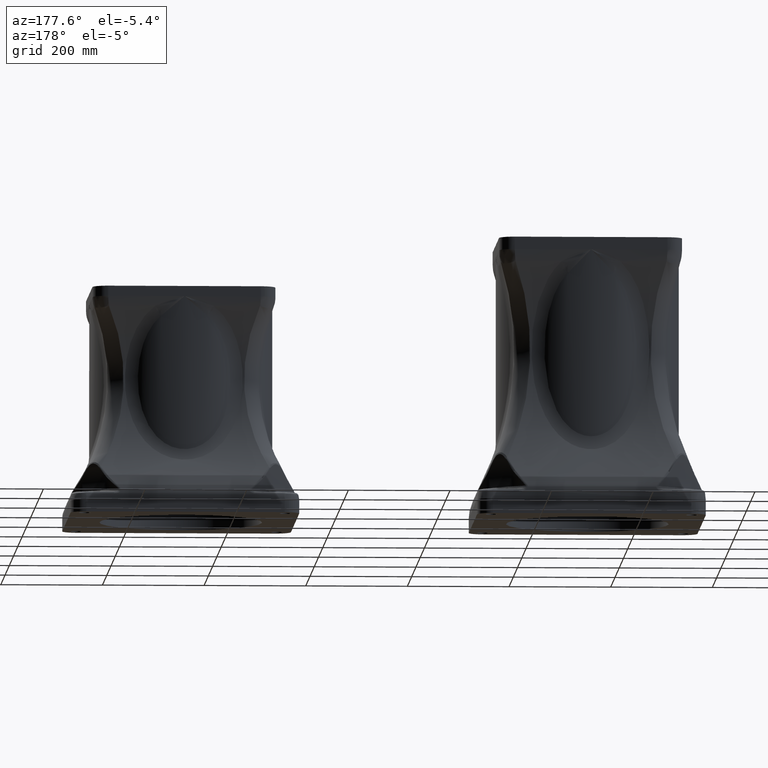
[diagram: clean part render]
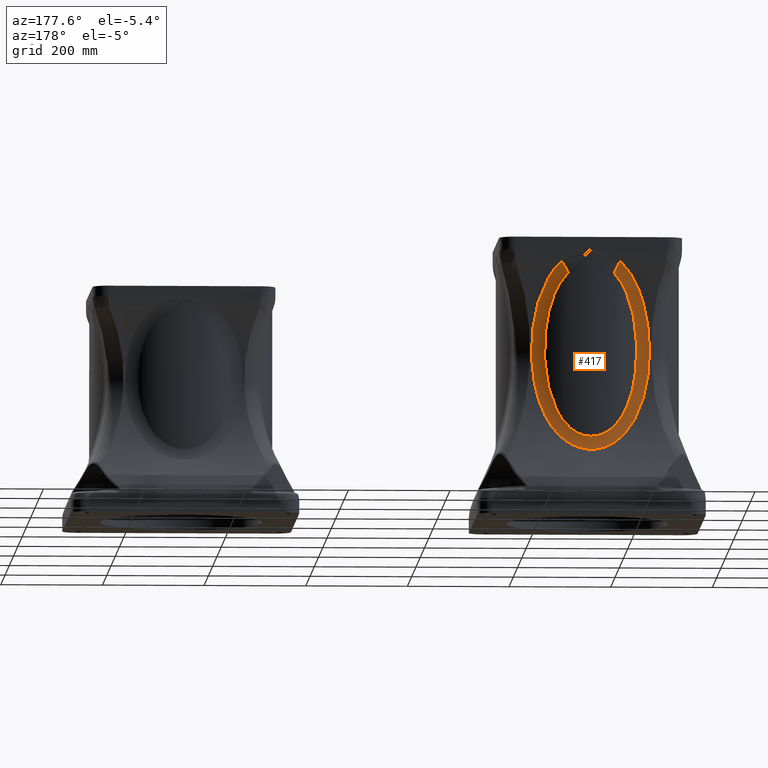
[diagram: same view with one face highlighted and labeled with its STEP entity id]
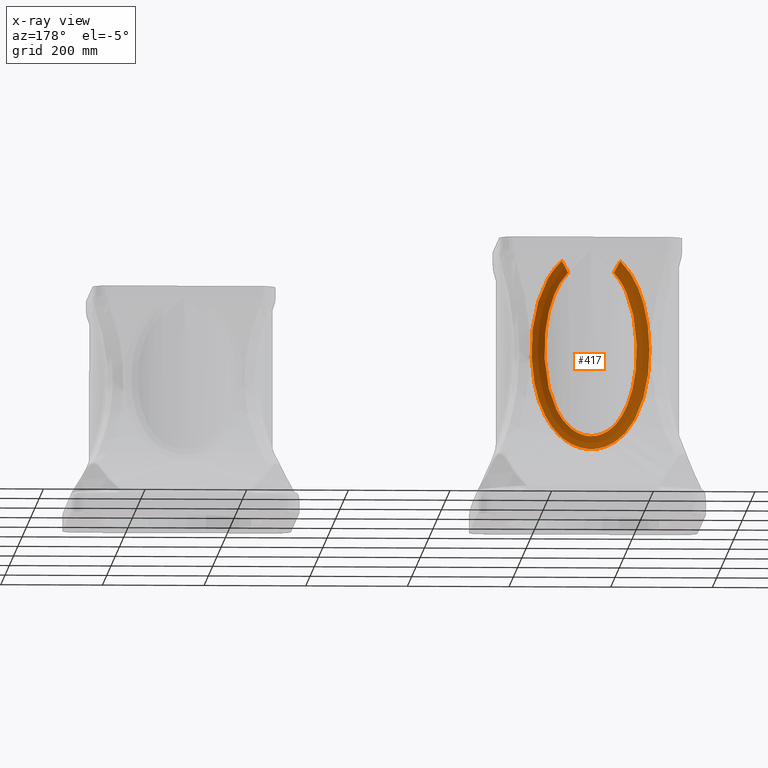
[diagram: x-ray of the same camera — body ghosted, the highlighted face saturated]
A machine part, auxiliary view. The second image highlights one B-rep face of the part: STEP entity #417.
The next image is the same camera in x-ray: the body ghosted, the highlighted face saturated — about 0% of this face is hidden behind the body in this view.
In plain terms, the highlighted face is a freeform B-spline surface patch.
Its self-contained STEP definition (entity closure, byte-faithful):
#417=ADVANCED_FACE('',(#903),#904,.F.);
#903=FACE_OUTER_BOUND('',#16968,.T.);
#904=(B_SPLINE_SURFACE(3,2,((#16970,#16971,#16972),(#16973,#16974,#16975),(#16976,#16977,#16978),(#16979,#16980,#16981),(#16982,#16983,#16984),(#16985,#16986,#16987),(#16988,#16989,#16990),(#16991,#16992,#16993),(#16994,#16995,#16996),(#16997,#16998,#16999),(#17000,#17001,#17002),(#17003,#17004,#17005),(#17006,#17007,#17008),(#17009,#17010,#17011),(#17012,#17013,#17014),(#17015,#17016,#17017),(#17018,#17019,#17020),(#17021,#17022,#17023),(#17024,#17025,#17026),(#17027,#17028,#17029),(#17030,#17031,#17032),(#17033,#17034,#17035),(#17036,#17037,#17038),(#17039,#17040,#17041),(#17042,#17043,#17044),(#17045,#17046,#17047),(#17048,#17049,#17050),(#17051,#17052,#17053),(#17054,#17055,#17056),(#17057,#17058,#17059),(#17060,#17061,#17062),(#17063,#17064,#17065),(#17066,#17067,#17068),(#17069,#17070,#17071),(#17072,#17073,#17074),(#17075,#17076,#17077),(#17078,#17079,#17080),(#17081,#17082,#17083),(#17084,#17085,#17086),(#17087,#17088,#17089),(#17090,#17091,#17092),(#17093,#17094,#17095),(#17096,#17097,#17098),(#17099,#17100,#17101),(#17102,#17103,#17104),(#17105,#17106,#17107),(#17108,#17109,#17110),(#17111,#17112,#17113),(#17114,#17115,#17116),(#17117,#17118,#17119),(#17120,#17121,#17122),(#17123,#17124,#17125),(#17126,#17127,#17128),(#17129,#17130,#17131),(#17132,#17133,#17134),(#17135,#17136,#17137),(#17138,#17139,#17140),(#17141,#17142,#17143),(#17144,#17145,#17146),(#17147,#17148,#17149),(#17150,#17151,#17152),(#17153,#17154,#17155),(#17156,#17157,#17158),(#17159,#17160,#17161),(#17162,#17163,#17164),(#17165,#17166,#17167),(#17168,#17169,#17170),(#17171,#17172,#17173),(#17174,#17175,#17176),(#17177,#17178,#17179),(#17180,#17181,#17182),(#17183,#17184,#17185),(#17186,#17187,#17188),(#17189,#17190,#17191),(#17192,#17193,#17194),(#17195,#17196,#17197),(#17198,#17199,#17200),(#17201,#17202,#17203),(#17204,#17205,#17206),(#17207,#17208,#17209),(#17210,#17211,#17212),(#17213,#17214,#17215),(#17216,#17217,#17218),(#17219,#17220,#17221),(#17222,#17223,#17224),(#17225,#17226,#17227),(#17228,#17229,#17230),(#17231,#17232,#17233),(#17234,#17235,#17236),(#17237,#17238,#17239),(#17240,#17241,#17242),(#17243,#17244,#17245),(#17246,#17247,#17248),(#17249,#17250,#17251),(#17252,#17253,#17254),(#17255,#17256,#17257),(#17258,#17259,#17260),(#17261,#17262,#17263),(#17264,#17265,#17266),(#17267,#17268,#17269),(#17270,#17271,#17272),(#17273,#17274,#17275),(#17276,#17277,#17278),(#17279,#17280,#17281),(#17282,#17283,#17284),(#17285,#17286,#17287),(#17288,#17289,#17290),(#17291,#17292,#17293),(#17294,#17295,#17296),(#17297,#17298,#17299),(#17300,#17301,#17302),(#17303,#17304,#17305),(#17306,#17307,#17308),(#17309,#17310,#17311),(#17312,#17313,#17314),(#17315,#17316,#17317),(#17318,#17319,#17320),(#17321,#17322,#17323),(#17324,#17325,#17326),(#17327,#17328,#17329),(#17330,#17331,#17332),(#17333,#17334,#17335),(#17336,#17337,#17338),(#17339,#17340,#17341),(#17342,#17343,#17344),(#17345,#17346,#17347),(#17348,#17349,#17350),(#17351,#17352,#17353),(#17354,#17355,#17356),(#17357,#17358,#17359),(#17360,#17361,#17362),(#17363,#17364,#17365),(#17366,#17367,#17368),(#17369,#17370,#17371),(#17372,#17373,#17374),(#17375,#17376,#17377),(#17378,#17379,#17380),(#17381,#17382,#17383),(#17384,#17385,#17386),(#17387,#17388,#17389),(#17390,#17391,#17392),(#17393,#17394,#17395),(#17396,#17397,#17398),(#17399,#17400,#17401),(#17402,#17403,#17404),(#17405,#17406,#17407),(#17408,#17409,#17410),(#17411,#17412,#17413),(#17414,#17415,#17416),(#17417,#17418,#17419),(#17420,#17421,#17422),(#17423,#17424,#17425),(#17426,#17427,#17428),(#17429,#17430,#17431),(#17432,#17433,#17434),(#17435,#17436,#17437),(#17438,#17439,#17440),(#17441,#17442,#17443),(#17444,#17445,#17446),(#17447,#17448,#17449),(#17450,#17451,#17452),(#17453,#17454,#17455),(#17456,#17457,#17458),(#17459,#17460,#17461),(#17462,#17463,#17464),(#17465,#17466,#17467),(#17468,#17469,#17470),(#17471,#17472,#17473),(#17474,#17475,#17476),(#17477,#17478,#17479),(#17480,#17481,#17482),(#17483,#17484,#17485),(#17486,#17487,#17488),(#17489,#17490,#17491),(#17492,#17493,#17494),(#17495,#17496,#17497),(#17498,#17499,#17500),(#17501,#17502,#17503),(#17504,#17505,#17506),(#17507,#17508,#17509),(#17510,#17511,#17512),(#17513,#17514,#17515),(#17516,#17517,#17518),(#17519,#17520,#17521),(#17522,#17523,#17524),(#17525,#17526,#17527),(#17528,#17529,#17530),(#17531,#17532,#17533),(#17534,#17535,#17536),(#17537,#17538,#17539),(#17540,#17541,#17542),(#17543,#17544,#17545),(#17546,#17547,#17548),(#17549,#17550,#17551)),.UNSPECIFIED.,.F.,.F.,.F.)B_SPLINE_SURFACE_WITH_KNOTS((4,2,2,2,2,2,2,2,2,2,2,2,2,2,2,2,2,2,2,2,2,2,2,2,2,2,2,2,2,2,2,2,2,2,2,2,2,2,2,2,2,2,2,2,2,2,2,2,2,2,2,2,2,2,2,2,2,2,2,2,2,2,2,2,2,2,2,2,2,2,2,2,2,2,2,2,2,2,2,2,2,2,2,2,2,2,2,2,2,2,2,2,2,2,2,2,4),(3,3),(0.326634866851321,0.33761907639892,0.348603285946518,0.359587495494117,0.370571705041715,0.373317757428615,0.376063809815515,0.381555914589314,0.392540124136912,0.403524333684511,0.41450854323211,0.420000648005909,0.425492752779708,0.436476962327307,0.447461171874905,0.458445381422504,0.463937486196304,0.466683538583203,0.469429590970103,0.480413800517702,0.4913980100653,0.502382219612899,0.513366429160498,0.518858533934297,0.521604586321196,0.524350638708096,0.535334848255695,0.546319057803294,0.557303267350892,0.568287476898491,0.57377958167229,0.57652563405919,0.579271686446089,0.590255895993688,0.601240105541287,0.612224315088885,0.614970367475785,0.616343393669235,0.617716419862685,0.623208524636484,0.634192734184083,0.645176943731681,0.65616115327928,0.65890720566618,0.661653258053079,0.667145362826879,0.678129572374477,0.689113781922076,0.690486808115526,0.691859834308976,0.694605886695875,0.700097991469675,0.711082201017273,0.722066410564872,0.723439436758322,0.724812462951771,0.727558515338671,0.733050620112471,0.744034829660069,0.755019039207668,0.757765091594567,0.760511143981467,0.766003248755266,0.776987458302865,0.787971667850464,0.793463772624263,0.796209825011163,0.798955877398062,0.809940086945661,0.82092429649326,0.831908506040858,0.834654558427758,0.837400610814658,0.842892715588457,0.853876925136056,0.864861134683654,0.875845344231253,0.881337449005052,0.884083501391952,0.886829553778852,0.89781376332645,0.908797972874049,0.919782182421647,0.930766391969246,0.936258496743045,0.939004549129945,0.941750601516845,0.952734811064443,0.963719020612042,0.974703230159641,0.985687439707239,0.991179544481039,0.993925596867938,0.996671649254838,1.00765585880244,1.01864006835003,1.02962427789763),(0.0,1.0),.UNSPECIFIED.)RATIONAL_B_SPLINE_SURFACE(((1.0,0.974000667868749,1.0),(1.0,0.973778549291526,1.0),(1.0,0.97354119508172,1.0),(1.0,0.97304014235486,1.0),(1.0,0.972776425457691,1.0),(1.0,0.97222732415551,1.0),(1.0,0.971941932178076,1.0),(1.0,0.971355088516368,1.0),(1.0,0.971053631265694,1.0),(1.0,0.970670969527797,1.0),(1.0,0.970594148087406,1.0),(1.0,0.970440044085007,1.0),(1.0,0.970362954960098,1.0),(1.0,0.970132186920177,1.0),(1.0,0.969978823643945,1.0),(1.0,0.969521594518124,1.0),(1.0,0.969220587238733,1.0),(1.0,0.968633799374051,1.0),(1.0,0.968348019881292,1.0),(1.0,0.967799346098654,1.0),(1.0,0.967536452928634,1.0),(1.0,0.967165036027089,1.0),(1.0,0.967045046868088,1.0),(1.0,0.966813684765083,1.0),(1.0,0.966702944348749,1.0),(1.0,0.966386463337282,1.0),(1.0,0.966196483609372,1.0),(1.0,0.965862939863075,1.0),(1.0,0.965719375813136,1.0),(1.0,0.96548240376595,1.0),(1.0,0.96538899593581,1.0),(1.0,0.96528881016692,1.0),(1.0,0.965262064052368,1.0),(1.0,0.965232160183915,1.0),(1.0,0.965223894450185,1.0),(1.0,0.965210803738225,1.0),(1.0,0.965205978439855,1.0),(1.0,0.965190567303141,1.0),(1.0,0.965206055050518,1.0),(1.0,0.965290884861351,1.0),(1.0,0.96536022655335,1.0),(1.0,0.965550296456896,1.0),(1.0,0.965671024525013,1.0),(1.0,0.965960719524146,1.0),(1.0,0.966129686541553,1.0),(1.0,0.966416446243375,1.0),(1.0,0.966517579026283,1.0),(1.0,0.966677190663765,1.0),(1.0,0.966731712951192,1.0),(1.0,0.966843322488121,1.0),(1.0,0.966900454803529,1.0),(1.0,0.967191130826751,1.0),(1.0,0.967440458144301,1.0),(1.0,0.967964890067789,1.0),(1.0,0.968239993749636,1.0),(1.0,0.968808257601215,1.0),(1.0,0.969101416670334,1.0),(1.0,0.969698177851669,1.0),(1.0,0.970001779044189,1.0),(1.0,0.970459407450834,1.0),(1.0,0.970612322540121,1.0),(1.0,0.970841564056955,1.0),(1.0,0.970917956121063,1.0),(1.0,0.971070582694198,1.0),(1.0,0.971146918563917,1.0),(1.0,0.971526414014131,1.0),(1.0,0.971822929813538,1.0),(1.0,0.972395627807894,1.0),(1.0,0.972671817504442,1.0),(1.0,0.973198836499348,1.0),(1.0,0.973449675892756,1.0),(1.0,0.973744780290545,1.0),(1.0,0.973802880604045,1.0),(1.0,0.973888605751155,1.0),(1.0,0.973916943260576,1.0),(1.0,0.973973135938005,1.0),(1.0,0.974001011790763,1.0),(1.0,0.974138830370245,1.0),(1.0,0.974244168756881,1.0),(1.0,0.974545452484421,1.0),(1.0,0.974726666582321,1.0),(1.0,0.975050105211646,1.0),(1.0,0.975192350546236,1.0),(1.0,0.975437933365607,1.0),(1.0,0.975541295705643,1.0),(1.0,0.975645655665871,1.0),(1.0,0.975665197150206,1.0),(1.0,0.975701593510337,1.0),(1.0,0.975718460801551,1.0),(1.0,0.975765135351759,1.0),(1.0,0.975791019272364,1.0),(1.0,0.975853353687101,1.0),(1.0,0.975874552627508,1.0),(1.0,0.97587671120044,1.0),(1.0,0.975857675714088,1.0),(1.0,0.975812680529382,1.0),(1.0,0.975807352109409,1.0),(1.0,0.97579603153496,1.0),(1.0,0.975790034851082,1.0),(1.0,0.97577109917982,1.0),(1.0,0.975757203692542,1.0),(1.0,0.975711731181761,1.0),(1.0,0.975676371463355,1.0),(1.0,0.97555525814135,1.0),(1.0,0.97545450791143,1.0),(1.0,0.975212406240339,1.0),(1.0,0.975071035864976,1.0),(1.0,0.974888253155978,1.0),(1.0,0.974867613812968,1.0),(1.0,0.97482567113388,1.0),(1.0,0.974804366746813,1.0),(1.0,0.97473969287846,1.0),(1.0,0.974695436169668,1.0),(1.0,0.974559289385367,1.0),(1.0,0.974464022419014,1.0),(1.0,0.97416507739132,1.0),(1.0,0.973948236834226,1.0),(1.0,0.973481648673694,1.0),(1.0,0.973231884845278,1.0),(1.0,0.972900939684799,1.0),(1.0,0.972833816177468,1.0),(1.0,0.972697757453233,1.0),(1.0,0.972629001144251,1.0),(1.0,0.972420975258555,1.0),(1.0,0.972279823569689,1.0),(1.0,0.971850084090411,1.0),(1.0,0.97155518718267,1.0),(1.0,0.970955100182683,1.0),(1.0,0.970649907419166,1.0),(1.0,0.970189893919732,1.0),(1.0,0.970036192004517,1.0),(1.0,0.969805841853928,1.0),(1.0,0.969729044594004,1.0),(1.0,0.969576225909638,1.0),(1.0,0.969500140338716,1.0),(1.0,0.969121626955549,1.0),(1.0,0.968824945258549,1.0),(1.0,0.968251367900984,1.0),(1.0,0.967974473335119,1.0),(1.0,0.967447913179115,1.0),(1.0,0.967198248671112,1.0),(1.0,0.966907762686757,1.0),(1.0,0.966850744884463,1.0),(1.0,0.966738981040969,1.0),(1.0,0.966684201862048,1.0),(1.0,0.966523669870256,1.0),(1.0,0.966421967275285,1.0),(1.0,0.966133628868278,1.0),(1.0,0.965963784114359,1.0),(1.0,0.965672669499944,1.0),(1.0,0.965551399517788,1.0),(1.0,0.965360554704187,1.0),(1.0,0.965290979994345,1.0),(1.0,0.9652272103221,1.0),(1.0,0.965212713742965,1.0),(1.0,0.965201287356038,1.0),(1.0,0.965199197964798,1.0),(1.0,0.965198483613991,1.0),(1.0,0.965199861196603,1.0),(1.0,0.965215437617869,1.0),(1.0,0.965255634844624,1.0),(1.0,0.965388990025619,1.0),(1.0,0.965482147598085,1.0),(1.0,0.965718259144907,1.0),(1.0,0.965861212909078,1.0),(1.0,0.966193109632514,1.0),(1.0,0.9663820525595,1.0),(1.0,0.966696624047413,1.0),(1.0,0.966806669068483,1.0),(1.0,0.966979056497461,1.0),(1.0,0.967037738643253,1.0),(1.0,0.967157461518874,1.0),(1.0,0.967218537597567,1.0),(1.0,0.967529221484901,1.0),(1.0,0.967792628494114,1.0),(1.0,0.968341015627352,1.0),(1.0,0.968625994923976,1.0),(1.0,0.969209597945027,1.0),(1.0,0.969508220709999,1.0),(1.0,0.970111428936643,1.0),(1.0,0.970416013759869,1.0),(1.0,0.970871806396627,1.0),(1.0,0.971023558713135,1.0),(1.0,0.971250244578882,1.0),(1.0,0.971325649568548,1.0),(1.0,0.971476034740159,1.0),(1.0,0.971551048600736,1.0),(1.0,0.971924426540257,1.0),(1.0,0.972214146308177,1.0),(1.0,0.972770005405608,1.0),(1.0,0.973036153965737,1.0),(1.0,0.973540378451843,1.0),(1.0,0.973778475921555,1.0),(1.0,0.974000667868749,1.0)))BOUNDED_SURFACE()REPRESENTATION_ITEM('')GEOMETRIC_REPRESENTATION_ITEM()SURFACE());
#16968=EDGE_LOOP('',(#21431,#21432,#21433,#21434));
#16970=CARTESIAN_POINT('',(-219.692491656609,331.341860465116,-10.6503179501101));
#16971=CARTESIAN_POINT('',(-213.0986846274,327.745051103088,-21.5021587259722));
#16972=CARTESIAN_POINT('',(-207.181701544924,329.274216380181,-33.5953053499086));
#16973=CARTESIAN_POINT('',(-222.748282882912,330.432476197292,-13.3939977744224));
#16974=CARTESIAN_POINT('',(-215.801971220921,326.959783582044,-24.0701747247631));
#16975=CARTESIAN_POINT('',(-209.573199846445,328.656165574232,-35.9779841515374));
#16976=CARTESIAN_POINT('',(-225.665926124024,329.487212437624,-16.321317436032));
#16977=CARTESIAN_POINT('',(-218.381636400085,326.143039306087,-26.8098417999252));
#16978=CARTESIAN_POINT('',(-211.856563302031,328.013734768789,-38.5201206929421));
#16979=CARTESIAN_POINT('',(-231.248691670601,327.551478587655,-22.5201390882977));
#16980=CARTESIAN_POINT('',(-223.315983342243,324.469053361836,-32.6116944165135));
#16981=CARTESIAN_POINT('',(-216.225684164571,326.698144486378,-43.903307917286));
#16982=CARTESIAN_POINT('',(-233.913736414584,326.560956397988,-25.7917551574942));
#16983=CARTESIAN_POINT('',(-225.670607196969,323.61170316169,-35.6743022663459));
#16984=CARTESIAN_POINT('',(-218.311371355524,326.024952059998,-46.7444481878582));
#16985=CARTESIAN_POINT('',(-239.007596164893,324.558208028807,-32.6657448505381));
#16986=CARTESIAN_POINT('',(-230.169387563577,321.876676513332,-42.1097534580731));
#16987=CARTESIAN_POINT('',(-222.297870290526,324.663816440592,-52.7139655529538));
#16988=CARTESIAN_POINT('',(-241.436363294545,323.545948518878,-36.2681732345482));
#16989=CARTESIAN_POINT('',(-232.313482518716,320.998921893477,-45.4829647283235));
#16990=CARTESIAN_POINT('',(-224.198644565956,323.975850595158,-55.8423902021477));
#16991=CARTESIAN_POINT('',(-246.068619071422,321.521553184914,-43.7972880384847));
#16992=CARTESIAN_POINT('',(-236.401071019827,319.241936131007,-52.5338667254583));
#16993=CARTESIAN_POINT('',(-227.823888217348,322.600002965542,-62.3808320056385));
#16994=CARTESIAN_POINT('',(-248.272084258578,320.509391637575,-47.723997306923));
#16995=CARTESIAN_POINT('',(-238.344489632085,318.362653573015,-56.2118767451978));
#16996=CARTESIAN_POINT('',(-229.548339233417,321.912103698756,-65.7908690018582));
#16997=CARTESIAN_POINT('',(-250.889774091541,319.257394955015,-52.8346318853291));
#16998=CARTESIAN_POINT('',(-240.651673094446,317.274301736853,-60.9983898879568));
#16999=CARTESIAN_POINT('',(-231.596966059219,321.061204351579,-70.2290516620774));
#17000=CARTESIAN_POINT('',(-251.406470181503,319.007654868617,-53.8668848660458));
#17001=CARTESIAN_POINT('',(-241.107130295818,317.057103438618,-61.9654492764069));
#17002=CARTESIAN_POINT('',(-232.001336912229,320.891472530828,-71.1254818821576));
#17003=CARTESIAN_POINT('',(-252.426244689921,318.509819571892,-55.9516863280053));
#17004=CARTESIAN_POINT('',(-242.0059328453,316.62403948561,-63.9186663383378));
#17005=CARTESIAN_POINT('',(-232.799421310127,320.553126802881,-72.9359673623023));
#17006=CARTESIAN_POINT('',(-252.928034718645,318.262350986077,-57.0016293413636));
#17007=CARTESIAN_POINT('',(-242.448140614203,316.408719112977,-64.9023859231365));
#17008=CARTESIAN_POINT('',(-233.192126549991,320.384938770857,-73.847759979162));
#17009=CARTESIAN_POINT('',(-254.406889109096,317.526061241271,-60.1678784535938));
#17010=CARTESIAN_POINT('',(-243.751344399287,315.767885404133,-67.8692973913577));
#17011=CARTESIAN_POINT('',(-234.349490855575,319.88453132416,-76.5973973660782));
#17012=CARTESIAN_POINT('',(-255.358669793206,317.04276657132,-62.3030766414677));
#17013=CARTESIAN_POINT('',(-244.58978456879,315.347091953709,-69.8700952217644));
#17014=CARTESIAN_POINT('',(-235.094362695301,319.556067898595,-78.4516484239783));
#17015=CARTESIAN_POINT('',(-258.116303484022,315.618337818615,-68.7794750138884));
#17016=CARTESIAN_POINT('',(-247.018858176896,314.106142047293,-75.9403420279315));
#17017=CARTESIAN_POINT('',(-237.252510801166,318.587977876707,-84.0758891158295));
#17018=CARTESIAN_POINT('',(-259.824646879699,314.702699841115,-73.1913602324069));
#17019=CARTESIAN_POINT('',(-248.522528006341,313.307880186422,-80.075648792168));
#17020=CARTESIAN_POINT('',(-238.589475197778,317.965679297035,-87.9072631213817));
#17021=CARTESIAN_POINT('',(-263.00060089806,312.952865569581,-82.1946807374541));
#17022=CARTESIAN_POINT('',(-251.316852539856,311.781126311246,-88.5161356092788));
#17023=CARTESIAN_POINT('',(-241.075004429536,316.77643266401,-95.7259361915447));
#17024=CARTESIAN_POINT('',(-264.46817234513,312.11864898324,-86.7861360979111));
#17025=CARTESIAN_POINT('',(-252.607300376254,311.052682811854,-92.8213040368953));
#17026=CARTESIAN_POINT('',(-242.22353860549,316.20947081931,-99.7132526887688));
#17027=CARTESIAN_POINT('',(-267.175986619637,310.544019846013,-96.1432054911464));
#17028=CARTESIAN_POINT('',(-254.987422842808,309.676692005669,-101.596605187941));
#17029=CARTESIAN_POINT('',(-244.342697602961,315.139299529175,-107.839128740828));
#17030=CARTESIAN_POINT('',(-268.416211175291,309.803590258495,-100.908826822466));
#17031=CARTESIAN_POINT('',(-256.076912101902,309.02920798802,-106.066630054673));
#17032=CARTESIAN_POINT('',(-245.31330812479,314.636078505121,-111.977694633781));
#17033=CARTESIAN_POINT('',(-270.112314920029,308.772184084651,-108.186205972308));
#17034=CARTESIAN_POINT('',(-257.566204262714,308.126797341747,-112.893009568087));
#17035=CARTESIAN_POINT('',(-246.640693664107,313.935099938579,-118.297523895509));
#17036=CARTESIAN_POINT('',(-270.650290573463,308.441574825304,-110.633600734867));
#17037=CARTESIAN_POINT('',(-258.038524727128,307.837409125061,-115.189199017328));
#17038=CARTESIAN_POINT('',(-247.061718088556,313.710406689082,-120.422893031416));
#17039=CARTESIAN_POINT('',(-271.671948673625,307.808284228337,-115.571085440762));
#17040=CARTESIAN_POINT('',(-258.935341701031,307.282912185635,-119.822026871489));
#17041=CARTESIAN_POINT('',(-247.861276601711,313.280000951493,-124.710708697046));
#17042=CARTESIAN_POINT('',(-272.152851893503,307.507330226325,-118.047709152285));
#17043=CARTESIAN_POINT('',(-259.357378459373,307.019327311022,-122.145992846679));
#17044=CARTESIAN_POINT('',(-248.237635643363,313.075462419245,-126.861460867583));
#17045=CARTESIAN_POINT('',(-273.509087803986,306.652202756481,-125.500598903945));
#17046=CARTESIAN_POINT('',(-260.547547545757,306.270093838796,-129.140823824579));
#17047=CARTESIAN_POINT('',(-249.299037660262,312.494288829958,-133.333707230879));
#17048=CARTESIAN_POINT('',(-274.298130564414,306.145762335495,-130.499844851159));
#17049=CARTESIAN_POINT('',(-261.239531356765,305.826196773027,-133.832765825626));
#17050=CARTESIAN_POINT('',(-249.916549385812,312.150094768056,-137.675157658704));
#17051=CARTESIAN_POINT('',(-275.658785393106,305.263651863091,-140.557313598063));
#17052=CARTESIAN_POINT('',(-262.432629021072,305.052677474181,-143.273502994176));
#17053=CARTESIAN_POINT('',(-250.981409686532,311.550582616338,-146.40927525472));
#17054=CARTESIAN_POINT('',(-276.23037435302,304.887975151102,-145.615540564236));
#17055=CARTESIAN_POINT('',(-262.933599408968,304.723125555164,-148.021869276111));
#17056=CARTESIAN_POINT('',(-251.428740176851,311.295259999746,-150.801946041144));
#17057=CARTESIAN_POINT('',(-277.16323496749,304.270984881318,-155.789846524055));
#17058=CARTESIAN_POINT('',(-263.751154192697,304.181709881498,-157.574165178559));
#17059=CARTESIAN_POINT('',(-252.15880500566,310.875932516567,-159.637527532524));
#17060=CARTESIAN_POINT('',(-277.524500060624,304.029665088109,-160.905926256589));
#17061=CARTESIAN_POINT('',(-264.067645463142,303.969897279924,-162.377614150514));
#17062=CARTESIAN_POINT('',(-252.44153420892,310.711923412252,-164.080438879174));
#17063=CARTESIAN_POINT('',(-277.910119913665,303.771390526046,-168.623428395914));
#17064=CARTESIAN_POINT('',(-264.405473002616,303.743164243605,-169.6239912285));
#17065=CARTESIAN_POINT('',(-252.743323659149,310.536391272867,-170.782480210761));
#17066=CARTESIAN_POINT('',(-278.012573707846,303.702586242969,-171.20316820515));
#17067=CARTESIAN_POINT('',(-264.495222925359,303.682756352731,-172.046354318027));
#17068=CARTESIAN_POINT('',(-252.823504889345,310.489629551871,-173.022780571394));
#17069=CARTESIAN_POINT('',(-278.126944444035,303.625712019029,-175.083715499757));
#17070=CARTESIAN_POINT('',(-264.595411454474,303.615259987109,-175.690233057307));
#17071=CARTESIAN_POINT('',(-252.913012422053,310.437383225741,-176.392729537758));
#17072=CARTESIAN_POINT('',(-278.158513798617,303.60447624417,-176.379054759992));
#17073=CARTESIAN_POINT('',(-264.623065631317,303.596614171458,-176.90658835079));
#17074=CARTESIAN_POINT('',(-252.937718873423,310.422950673942,-177.517629421649));
#17075=CARTESIAN_POINT('',(-278.208482554832,303.570852988432,-178.973400365416));
#17076=CARTESIAN_POINT('',(-264.666837264285,303.567091124766,-179.342762202235));
#17077=CARTESIAN_POINT('',(-252.976824856606,310.40009917064,-179.770613763199));
#17078=CARTESIAN_POINT('',(-278.226883194928,303.558464678683,-180.273367645502));
#17079=CARTESIAN_POINT('',(-264.68295549357,303.556213376303,-180.563474465295));
#17080=CARTESIAN_POINT('',(-252.991225357531,310.391679655753,-180.899532716954));
#17081=CARTESIAN_POINT('',(-278.285642087307,303.51890145956,-186.761824841359));
#17082=CARTESIAN_POINT('',(-264.73442667943,303.521473580216,-186.656443702413));
#17083=CARTESIAN_POINT('',(-253.037210577603,310.364791152191,-186.534245544961));
#17084=CARTESIAN_POINT('',(-278.226861985811,303.558580815083,-191.927673311168));
#17085=CARTESIAN_POINT('',(-264.68294685724,303.556314412772,-191.507140857154));
#17086=CARTESIAN_POINT('',(-252.99120875909,310.391758585997,-191.020377110794));
#17087=CARTESIAN_POINT('',(-277.902257558517,303.77670229052,-202.210675605211));
#17088=CARTESIAN_POINT('',(-264.398588873291,303.747827355839,-201.163069940366));
#17089=CARTESIAN_POINT('',(-252.737170511627,310.540001327879,-199.950352787265));
#17090=CARTESIAN_POINT('',(-277.636421976202,303.955150069805,-207.327826945459));
#17091=CARTESIAN_POINT('',(-264.165731990646,303.904483245573,-205.967766217973));
#17092=CARTESIAN_POINT('',(-252.529125273285,310.661280482303,-204.394194740625));
#17093=CARTESIAN_POINT('',(-276.896983692651,304.447455300136,-217.513596924544));
#17094=CARTESIAN_POINT('',(-263.517807961238,304.336588370366,-215.531471190524));
#17095=CARTESIAN_POINT('',(-251.950434442711,310.995867789716,-213.239731827689));
#17096=CARTESIAN_POINT('',(-276.423384768168,304.761317969726,-222.582215781091));
#17097=CARTESIAN_POINT('',(-263.102814129645,304.611996134841,-220.289981529603));
#17098=CARTESIAN_POINT('',(-251.579791806142,311.209179489674,-217.64142715053));
#17099=CARTESIAN_POINT('',(-275.262606877881,305.521469766349,-232.670148713055));
#17100=CARTESIAN_POINT('',(-262.085245285856,305.278804072833,-229.760244759181));
#17101=CARTESIAN_POINT('',(-250.671356935486,311.725804395027,-226.402000486117));
#17102=CARTESIAN_POINT('',(-274.575447435407,305.96776431263,-237.689465779354));
#17103=CARTESIAN_POINT('',(-261.482794398937,305.670141361004,-234.471543003847));
#17104=CARTESIAN_POINT('',(-250.133579980479,312.029121283386,-230.760881096361));
#17105=CARTESIAN_POINT('',(-273.376088349271,306.734448213942,-245.180147736809));
#17106=CARTESIAN_POINT('',(-260.430654300908,306.342186629214,-241.502652117163));
#17107=CARTESIAN_POINT('',(-249.194951130498,312.550185628253,-237.265947006777));
#17108=CARTESIAN_POINT('',(-272.948154379766,307.006217695292,-247.670651499752));
#17109=CARTESIAN_POINT('',(-260.055234511439,306.580326869674,-243.839948004808));
#17110=CARTESIAN_POINT('',(-248.860046284809,312.734889371856,-239.428752906174));
#17111=CARTESIAN_POINT('',(-272.262541634304,307.437928142174,-251.396579841038));
#17112=CARTESIAN_POINT('',(-259.453586303539,306.958539523172,-247.336647613414));
#17113=CARTESIAN_POINT('',(-248.323479788326,313.028294412416,-242.664427518347));
#17114=CARTESIAN_POINT('',(-272.026715565611,307.585840996316,-252.636917505842));
#17115=CARTESIAN_POINT('',(-259.246634514806,307.088098205471,-248.500567540992));
#17116=CARTESIAN_POINT('',(-248.138920256321,313.128820997492,-243.741562858825));
#17117=CARTESIAN_POINT('',(-271.540197824654,307.889642509528,-255.11426850233));
#17118=CARTESIAN_POINT('',(-258.819638819299,307.35416466579,-250.825206560354));
#17119=CARTESIAN_POINT('',(-247.758167241651,313.33529479481,-245.892946618951));
#17120=CARTESIAN_POINT('',(-271.289303061358,308.045655635827,-256.352187513171));
#17121=CARTESIAN_POINT('',(-258.599419142794,307.490779933219,-251.98677003197));
#17122=CARTESIAN_POINT('',(-247.561814818196,313.441326599177,-246.967981549413));
#17123=CARTESIAN_POINT('',(-270.002272207873,308.84222261176,-262.508170023339));
#17124=CARTESIAN_POINT('',(-257.469821019404,308.188078189916,-257.761793896089));
#17125=CARTESIAN_POINT('',(-246.554573280737,313.98270049358,-252.313966360853));
#17126=CARTESIAN_POINT('',(-268.865451913282,309.534286963047,-267.342724804257));
#17127=CARTESIAN_POINT('',(-256.471585436251,308.793634727513,-262.297165483936));
#17128=CARTESIAN_POINT('',(-245.664887832737,314.453050865044,-256.512395512661));
#17129=CARTESIAN_POINT('',(-266.372490892345,311.015720365573,-276.831425806968));
#17130=CARTESIAN_POINT('',(-254.281257427861,310.089028308752,-271.1973463934));
#17131=CARTESIAN_POINT('',(-243.713874859865,315.459883177519,-264.75258322566));
#17132=CARTESIAN_POINT('',(-265.016356123424,311.805105881844,-281.485571517007));
#17133=CARTESIAN_POINT('',(-253.089332552447,310.778799885081,-275.562009770189));
#17134=CARTESIAN_POINT('',(-242.652551997179,315.996376308754,-268.794341342199));
#17135=CARTESIAN_POINT('',(-262.075173767821,313.468703484932,-290.610304191934));
#17136=CARTESIAN_POINT('',(-250.502749004385,312.23137071319,-284.117770959485));
#17137=CARTESIAN_POINT('',(-240.350757110256,317.127013581252,-276.71845129677));
#17138=CARTESIAN_POINT('',(-260.490148788088,314.342933444416,-295.080901849509));
#17139=CARTESIAN_POINT('',(-249.108276494987,312.994115788718,-288.30882029943));
#17140=CARTESIAN_POINT('',(-239.110302778232,317.721169869487,-280.600812420428));
#17141=CARTESIAN_POINT('',(-257.076529752201,316.16303987453,-303.832058059184));
#17142=CARTESIAN_POINT('',(-246.103259749594,314.580799854967,-296.511301676763));
#17143=CARTESIAN_POINT('',(-236.43877483715,318.958175841559,-288.2005007078));
#17144=CARTESIAN_POINT('',(-255.247980740146,317.108938371984,-308.112641763072));
#17145=CARTESIAN_POINT('',(-244.492919852435,315.404703216372,-300.522778644946));
#17146=CARTESIAN_POINT('',(-235.007736479837,319.60104049539,-291.917849713869));
#17147=CARTESIAN_POINT('',(-252.306950350179,318.570669481948,-314.383239055473));
#17148=CARTESIAN_POINT('',(-241.900949456648,316.676976446676,-306.399007797676));
#17149=CARTESIAN_POINT('',(-232.706060522514,320.594482462552,-297.363368415056));
#17150=CARTESIAN_POINT('',(-251.293521033946,319.06504833551,-316.448359393844));
#17151=CARTESIAN_POINT('',(-241.007737740703,317.107019662631,-308.333775734109));
#17152=CARTESIAN_POINT('',(-231.912941927173,320.930479074683,-299.15676239313));
#17153=CARTESIAN_POINT('',(-249.721267157577,319.815823017859,-319.507116539875));
#17154=CARTESIAN_POINT('',(-239.621519445004,317.759845623864,-311.199427193648));
#17155=CARTESIAN_POINT('',(-230.682482371776,321.440730975535,-301.813051493663));
#17156=CARTESIAN_POINT('',(-249.188493480064,320.067614555655,-320.520212501895));
#17157=CARTESIAN_POINT('',(-239.151767813072,317.978720560694,-312.148448633462));
#17158=CARTESIAN_POINT('',(-230.265529058926,321.61185703208,-302.692845355389));
#17159=CARTESIAN_POINT('',(-248.105101695524,320.57400037726,-322.533174685789));
#17160=CARTESIAN_POINT('',(-238.196411729355,318.41880520379,-314.034015128567));
#17161=CARTESIAN_POINT('',(-229.417657227558,321.956013986398,-304.440944094067));
#17162=CARTESIAN_POINT('',(-247.553729327608,320.828936971351,-323.534359454799));
#17163=CARTESIAN_POINT('',(-237.710144078479,318.640312014981,-314.971797790974));
#17164=CARTESIAN_POINT('',(-228.986148417884,322.129277529723,-305.310394025043));
#17165=CARTESIAN_POINT('',(-244.76216207208,322.10485974639,-328.486906097534));
#17166=CARTESIAN_POINT('',(-235.248473862057,319.748405517706,-319.609423166305));
#17167=CARTESIAN_POINT('',(-226.801443609185,322.996437859692,-309.611289793687));
#17168=CARTESIAN_POINT('',(-242.418867637737,323.12934577128,-332.278130206803));
#17169=CARTESIAN_POINT('',(-233.180703215954,320.637532880697,-323.159934004802));
#17170=CARTESIAN_POINT('',(-224.967561008392,323.692713258767,-312.903668625411));
#17171=CARTESIAN_POINT('',(-237.505157764823,325.163752880302,-339.517783407363));
#17172=CARTESIAN_POINT('',(-228.842725628144,322.401488713546,-329.938642121109));
#17173=CARTESIAN_POINT('',(-221.122048933983,325.075365229837,-319.190735878622));
#17174=CARTESIAN_POINT('',(-234.934770818542,326.173702559141,-342.966243788592));
#17175=CARTESIAN_POINT('',(-226.57257324064,323.276386319778,-333.167197434771));
#17176=CARTESIAN_POINT('',(-219.110441758569,325.761761235833,-322.185451472749));
#17177=CARTESIAN_POINT('',(-229.555336608228,328.156060375562,-349.512684304707));
#17178=CARTESIAN_POINT('',(-221.819563905751,324.992088819195,-339.295108151021));
#17179=CARTESIAN_POINT('',(-214.900449767972,327.10903874496,-327.870518236846));
#17180=CARTESIAN_POINT('',(-226.746345461554,329.128506794374,-352.610733960089));
#17181=CARTESIAN_POINT('',(-219.3367487028,325.832989103781,-342.194864429704));
#17182=CARTESIAN_POINT('',(-212.702108870509,327.769946265214,-330.560929779633));
#17183=CARTESIAN_POINT('',(-223.075139867185,330.305026734713,-356.254451918212));
#17184=CARTESIAN_POINT('',(-216.090142448391,326.849658912124,-345.605444846757));
#17185=CARTESIAN_POINT('',(-209.828991448858,328.569549062283,-333.725211164311));
#17186=CARTESIAN_POINT('',(-222.332883641544,330.538372327023,-356.971730357651));
#17187=CARTESIAN_POINT('',(-215.433798481803,327.05122138972,-346.276691646741));
#17188=CARTESIAN_POINT('',(-209.24809527226,328.728138629592,-334.348110861724));
#17189=CARTESIAN_POINT('',(-221.207218432444,330.885138374289,-358.030191062761));
#17190=CARTESIAN_POINT('',(-214.438314858084,327.350701867407,-347.267225846075));
#17191=CARTESIAN_POINT('',(-208.367139891231,328.963812579315,-335.267300421419));
#17192=CARTESIAN_POINT('',(-220.829949630605,331.000184893024,-358.380101462176));
#17193=CARTESIAN_POINT('',(-214.104673262411,327.450047233517,-347.594667356862));
#17194=CARTESIAN_POINT('',(-208.071886046312,329.042002089768,-335.571169978803));
#17195=CARTESIAN_POINT('',(-220.071271675898,331.229139785368,-359.074055083903));
#17196=CARTESIAN_POINT('',(-213.433702507067,327.64773472707,-348.244051412619));
#17197=CARTESIAN_POINT('',(-207.478138081758,329.197607588681,-336.173813913471));
#17198=CARTESIAN_POINT('',(-219.689571780279,331.343133304268,-359.418353874247));
#17199=CARTESIAN_POINT('',(-213.096116036247,327.746150515695,-348.566233772856));
#17200=CARTESIAN_POINT('',(-207.179416424317,329.275081444778,-336.472810231397));
#17201=CARTESIAN_POINT('',(-217.775313843098,331.908733452246,-361.12089150286));
#17202=CARTESIAN_POINT('',(-211.403170616392,328.234367531794,-350.159251178792));
#17203=CARTESIAN_POINT('',(-205.681301516963,329.659482460671,-337.951329750979));
#17204=CARTESIAN_POINT('',(-216.224577650169,332.34754648068,-362.423264961659));
#17205=CARTESIAN_POINT('',(-210.031387859255,328.613023455463,-351.377913350165));
#17206=CARTESIAN_POINT('',(-204.467681887683,329.957714656188,-339.082338280975));
#17207=CARTESIAN_POINT('',(-211.514589428605,333.619416367962,-366.154030532008));
#17208=CARTESIAN_POINT('',(-205.864817946869,329.709995772354,-354.868314107356));
#17209=CARTESIAN_POINT('',(-200.781604149147,330.822120506408,-342.322213644746));
#17210=CARTESIAN_POINT('',(-208.297671760006,334.407919476103,-368.406454173214));
#17211=CARTESIAN_POINT('',(-203.017921573482,330.389629763586,-356.975813403491));
#17212=CARTESIAN_POINT('',(-198.264016408436,331.358013923083,-344.278265754158));
#17213=CARTESIAN_POINT('',(-201.708471753054,335.847061040979,-372.446638446174));
#17214=CARTESIAN_POINT('',(-197.185563854724,331.629248804735,-360.755550318576));
#17215=CARTESIAN_POINT('',(-193.107251185635,332.336103270449,-347.786846833357));
#17216=CARTESIAN_POINT('',(-198.336213566307,336.497739151806,-374.234461664186));
#17217=CARTESIAN_POINT('',(-194.199936764192,332.189357918134,-362.42814256207));
#17218=CARTESIAN_POINT('',(-190.468092604693,332.778326151254,-349.339430154169));
#17219=CARTESIAN_POINT('',(-191.430913715005,337.64129617875,-377.337246096315));
#17220=CARTESIAN_POINT('',(-188.085571336238,333.17322770801,-365.330616293223));
#17221=CARTESIAN_POINT('',(-185.063944894968,333.555526235874,-352.033953476946));
#17222=CARTESIAN_POINT('',(-187.897920047695,338.134227604228,-378.652345610835));
#17223=CARTESIAN_POINT('',(-184.956666102981,333.59710803952,-366.560854616422));
#17224=CARTESIAN_POINT('',(-182.298993329245,333.89053912689,-353.176013581663));
#17225=CARTESIAN_POINT('',(-183.374697517848,338.637866530749,-379.9855785417));
#17226=CARTESIAN_POINT('',(-180.950255957856,334.03006581055,-367.80801373826));
#17227=CARTESIAN_POINT('',(-178.759080045026,334.232829198246,-354.333821126798));
#17228=CARTESIAN_POINT('',(-182.468300863282,338.732549614139,-380.235561112893));
#17229=CARTESIAN_POINT('',(-180.147450952673,334.111448384051,-368.04184205976));
#17230=CARTESIAN_POINT('',(-178.049726141449,334.29717902837,-354.550911254432));
#17231=CARTESIAN_POINT('',(-180.655340819259,338.909442177276,-380.701651058027));
#17232=CARTESIAN_POINT('',(-178.541662162704,334.26348009708,-368.477808004584));
#17233=CARTESIAN_POINT('',(-176.63088784613,334.417401205154,-354.955673575204));
#17234=CARTESIAN_POINT('',(-179.748241762432,338.991711560394,-380.917916919541));
#17235=CARTESIAN_POINT('',(-177.738199625757,334.334181539749,-368.680096230844));
#17236=CARTESIAN_POINT('',(-175.920984236435,334.473314264142,-355.143483402304));
#17237=CARTESIAN_POINT('',(-177.025103412882,339.219963754573,-381.516913476652));
#17238=CARTESIAN_POINT('',(-175.326180874263,334.530322601262,-369.240364319254));
#17239=CARTESIAN_POINT('',(-173.78983248462,334.628442185635,-355.663664622969));
#17240=CARTESIAN_POINT('',(-175.207224114391,339.347392967481,-381.849880259206));
#17241=CARTESIAN_POINT('',(-173.715892123894,334.639811378963,-369.551811187092));
#17242=CARTESIAN_POINT('',(-172.367144337989,334.715047394372,-355.952819986724));
#17243=CARTESIAN_POINT('',(-169.746309202793,339.655179814454,-382.652608211656));
#17244=CARTESIAN_POINT('',(-168.87861355296,334.904236059255,-370.302623005836));
#17245=CARTESIAN_POINT('',(-168.0933848419,334.924229759485,-356.64992584026));
#17246=CARTESIAN_POINT('',(-166.096014883394,339.761079246315,-382.92677289604));
#17247=CARTESIAN_POINT('',(-165.644820183619,334.995200557778,-370.559078466817));
#17248=CARTESIAN_POINT('',(-165.236632765882,334.996202599892,-356.888016223943));
#17249=CARTESIAN_POINT('',(-158.776061194107,339.771823745417,-382.954653010689));
#17250=CARTESIAN_POINT('',(-159.160337987087,335.004429780698,-370.585155687334));
#17251=CARTESIAN_POINT('',(-159.507973356884,335.003504925381,-356.912227902579));
#17252=CARTESIAN_POINT('',(-155.106403366252,339.676676814596,-382.708414432014));
#17253=CARTESIAN_POINT('',(-155.909378650347,334.922702253941,-370.354822077948));
#17254=CARTESIAN_POINT('',(-156.636067230738,334.938839848737,-356.698389136901));
#17255=CARTESIAN_POINT('',(-150.966807629119,339.454341639369,-382.128821729625));
#17256=CARTESIAN_POINT('',(-152.242560872843,334.731696596897,-369.812722824576));
#17257=CARTESIAN_POINT('',(-153.396383610365,334.78773333386,-356.195058632109));
#17258=CARTESIAN_POINT('',(-150.506696152031,339.428035380592,-382.060207153613));
#17259=CARTESIAN_POINT('',(-151.834985682163,334.70909587542,-369.748544404152));
#17260=CARTESIAN_POINT('',(-153.036296367426,334.769854709453,-356.135472289788));
#17261=CARTESIAN_POINT('',(-149.586158502528,339.372208667697,-381.914490187865));
#17262=CARTESIAN_POINT('',(-151.019562619931,334.661131787355,-369.612248464662));
#17263=CARTESIAN_POINT('',(-152.315875598255,334.731912984692,-356.008928609016));
#17264=CARTESIAN_POINT('',(-149.125430157406,339.342665968676,-381.837329585928));
#17265=CARTESIAN_POINT('',(-150.61144654228,334.635749243006,-369.540076314046));
#17266=CARTESIAN_POINT('',(-151.955305589025,334.711834765896,-355.941920717861));
#17267=CARTESIAN_POINT('',(-147.746942695015,339.249494654636,-381.593788592309));
#17268=CARTESIAN_POINT('',(-149.390375786349,334.555695403951,-369.312278696799));
#17269=CARTESIAN_POINT('',(-150.876489314114,334.648512385417,-355.730424591808));
#17270=CARTESIAN_POINT('',(-146.83183345417,339.181268157836,-381.41520818867));
#17271=CARTESIAN_POINT('',(-148.579783230026,334.497071559713,-369.145242051086));
#17272=CARTESIAN_POINT('',(-150.160316864759,334.602143347536,-355.575341609731));
#17273=CARTESIAN_POINT('',(-144.097982385994,338.958674778048,-380.831435267052));
#17274=CARTESIAN_POINT('',(-146.158183850257,334.305791688679,-368.599196973364));
#17275=CARTESIAN_POINT('',(-148.020781246173,334.450861348028,-355.06838091458));
#17276=CARTESIAN_POINT('',(-142.290709444647,338.786398613707,-380.378247687616));
#17277=CARTESIAN_POINT('',(-144.557400144582,334.157733291121,-368.175292615839));
#17278=CARTESIAN_POINT('',(-146.606393726868,334.333776632202,-354.674823279838));
#17279=CARTESIAN_POINT('',(-136.913707890056,338.201122503927,-378.830287682284));
#17280=CARTESIAN_POINT('',(-139.79482692365,333.654623153572,-366.727305560979));
#17281=CARTESIAN_POINT('',(-142.398305553704,333.936003166278,-353.330542222604));
#17282=CARTESIAN_POINT('',(-133.388692358132,337.719717173073,-377.547620283001));
#17283=CARTESIAN_POINT('',(-136.67293697315,333.240672848305,-365.527407820384));
#17284=CARTESIAN_POINT('',(-139.639597746134,333.608823799538,-352.216646849542));
#17285=CARTESIAN_POINT('',(-126.455049732916,336.590061439403,-374.487022968935));
#17286=CARTESIAN_POINT('',(-130.533381379889,332.268812821961,-362.664409360875));
#17287=CARTESIAN_POINT('',(-134.213268735059,332.841071504592,-349.558759708344));
#17288=CARTESIAN_POINT('',(-123.046435619668,335.941775704696,-372.709047023684));
#17289=CARTESIAN_POINT('',(-127.515495850765,331.71079539998,-361.001029803086));
#17290=CARTESIAN_POINT('',(-131.545657689924,332.400474563612,-348.014727966339));
#17291=CARTESIAN_POINT('',(-119.277390603521,335.126805727154,-370.424831335846));
#17292=CARTESIAN_POINT('',(-124.179795656364,331.008952963001,-358.864386591395));
#17293=CARTESIAN_POINT('',(-128.595970285986,331.846593366051,-346.031066974375));
#17294=CARTESIAN_POINT('',(-118.859521512073,335.035063730912,-370.167075580907));
#17295=CARTESIAN_POINT('',(-123.809926528391,330.929927887379,-358.623245967405));
#17296=CARTESIAN_POINT('',(-128.268942301374,331.784242398355,-345.807226450339));
#17297=CARTESIAN_POINT('',(-118.025614579396,334.84922859374,-369.643620875542));
#17298=CARTESIAN_POINT('',(-123.071829664148,330.769839161622,-358.133530294103));
#17299=CARTESIAN_POINT('',(-127.616319484495,331.657942545401,-345.352647364098));
#17300=CARTESIAN_POINT('',(-117.60957420299,334.755131569731,-369.377909243478));
#17301=CARTESIAN_POINT('',(-122.703599336215,330.688771965498,-357.884942762829));
#17302=CARTESIAN_POINT('',(-127.29072266818,331.593991021076,-345.121897788881));
#17303=CARTESIAN_POINT('',(-116.368723866946,334.470412730677,-368.571801937785));
#17304=CARTESIAN_POINT('',(-121.60535057834,330.443452475158,-357.130763947033));
#17305=CARTESIAN_POINT('',(-126.319622405183,331.4004864554,-344.421857233952));
#17306=CARTESIAN_POINT('',(-115.548684518373,334.276803571974,-368.020856771365));
#17307=CARTESIAN_POINT('',(-120.87960831291,330.2766100325,-356.615310859675));
#17308=CARTESIAN_POINT('',(-125.677852480208,331.268903114128,-343.943404852581));
#17309=CARTESIAN_POINT('',(-113.109741846879,333.685222294389,-366.327962034612));
#17310=CARTESIAN_POINT('',(-118.721152648368,329.766701902684,-355.031377766041));
#17311=CARTESIAN_POINT('',(-123.769114737328,330.866844442648,-342.473259423285));
#17312=CARTESIAN_POINT('',(-111.512001024723,333.276501779559,-365.145978131296));
#17313=CARTESIAN_POINT('',(-117.307387568851,329.414299185197,-353.925465735582));
#17314=CARTESIAN_POINT('',(-122.518708876497,330.589064138523,-341.446799717794));
#17315=CARTESIAN_POINT('',(-106.800688296065,332.01220492549,-361.443386650614));
#17316=CARTESIAN_POINT('',(-113.138716218,328.323689214167,-350.460731246517));
#17317=CARTESIAN_POINT('',(-118.831594567095,329.729805178168,-338.231391326638));
#17318=CARTESIAN_POINT('',(-103.768866888656,331.1185425998,-358.766455892913));
#17319=CARTESIAN_POINT('',(-110.457063310954,327.552276576428,-347.95566509817));
#17320=CARTESIAN_POINT('',(-116.458864770014,329.122441995659,-335.906688300303));
#17321=CARTESIAN_POINT('',(-97.9130968230059,329.253878263269,-353.005612136032));
#17322=CARTESIAN_POINT('',(-105.279352737417,325.941364039412,-342.564447512607));
#17323=CARTESIAN_POINT('',(-111.876088196877,327.85515296162,-330.903850300775));
#17324=CARTESIAN_POINT('',(-95.0891848814154,328.28283855742,-349.921638943017));
#17325=CARTESIAN_POINT('',(-102.783242682247,325.101744810074,-339.677875919639));
#17326=CARTESIAN_POINT('',(-109.666070155633,327.195201491012,-328.225663054275));
#17327=CARTESIAN_POINT('',(-91.6858078069121,327.035092680919,-345.812596019758));
#17328=CARTESIAN_POINT('',(-99.7767035552465,324.022136705023,-335.832359085282));
#17329=CARTESIAN_POINT('',(-107.002557662555,326.347191135533,-324.657283673551));
#17330=CARTESIAN_POINT('',(-91.0114681950319,326.783844863758,-344.978062528994));
#17331=CARTESIAN_POINT('',(-99.1809286332672,323.804651704502,-335.051159464562));
#17332=CARTESIAN_POINT('',(-106.474813618475,326.176434609916,-323.932557221049));
#17333=CARTESIAN_POINT('',(-89.6754136477491,326.278309523736,-343.283472157552));
#17334=CARTESIAN_POINT('',(-98.0006498609106,323.366951137504,-333.46481966306));
#17335=CARTESIAN_POINT('',(-105.4292057119,325.832855671744,-322.460939266893));
#17336=CARTESIAN_POINT('',(-89.0154679868958,326.024688616843,-342.425640825221));
#17337=CARTESIAN_POINT('',(-97.4177089794678,323.147311702701,-332.6617573111));
#17338=CARTESIAN_POINT('',(-104.91272649907,325.660486313946,-321.715980478297));
#17339=CARTESIAN_POINT('',(-87.0621238924911,325.262909015982,-339.824612609001));
#17340=CARTESIAN_POINT('',(-95.6923388539641,322.487401606433,-330.226540722907));
#17341=CARTESIAN_POINT('',(-103.384022425162,325.142755097855,-319.457192816835));
#17342=CARTESIAN_POINT('',(-85.793985473036,324.753378465314,-338.052354372508));
#17343=CARTESIAN_POINT('',(-94.5725235819048,322.04583519256,-328.567247016278));
#17344=CARTESIAN_POINT('',(-102.391566270822,324.796460879181,-317.918126453588));
#17345=CARTESIAN_POINT('',(-82.0876149487446,323.224068277184,-332.624023672748));
#17346=CARTESIAN_POINT('',(-91.2998512690778,320.719711705535,-323.483835324387));
#17347=CARTESIAN_POINT('',(-99.4909284692057,323.75708988173,-313.204049793215));
#17348=CARTESIAN_POINT('',(-79.7472430486467,322.203627817938,-328.856583482115));
#17349=CARTESIAN_POINT('',(-89.2346231547512,319.834147183907,-319.955656795971));
#17350=CARTESIAN_POINT('',(-97.6593330691103,323.063563986104,-309.932325417191));
#17351=CARTESIAN_POINT('',(-75.3101623436313,320.182192675563,-321.036289074578));
#17352=CARTESIAN_POINT('',(-85.3208508474324,318.07830670981,-312.631008305805));
#17353=CARTESIAN_POINT('',(-94.1868351260886,321.689728202842,-303.141017115879));
#17354=CARTESIAN_POINT('',(-73.2134950098452,319.18116965149,-316.983398463649));
#17355=CARTESIAN_POINT('',(-83.4724357488312,317.207997762188,-308.834262995708));
#17356=CARTESIAN_POINT('',(-92.5459650388003,321.009399053794,-299.621401585352));
#17357=CARTESIAN_POINT('',(-70.2423385682671,317.708965599528,-310.69448067346));
#17358=CARTESIAN_POINT('',(-80.8546377656482,315.927103440422,-302.942807225347));
#17359=CARTESIAN_POINT('',(-90.2207121714191,320.008839320485,-294.15997297808));
#17360=CARTESIAN_POINT('',(-69.2809658535936,317.22311005933,-308.563203888265));
#17361=CARTESIAN_POINT('',(-80.0076906836973,315.504126942443,-300.945724232773));
#17362=CARTESIAN_POINT('',(-89.4683335251698,319.67863544078,-292.309127348862));
#17363=CARTESIAN_POINT('',(-67.8816326437837,316.503432982101,-305.314049221045));
#17364=CARTESIAN_POINT('',(-78.7752975724888,314.877365706726,-297.901120904421));
#17365=CARTESIAN_POINT('',(-88.373203187062,319.189518525593,-289.487493032547));
#17366=CARTESIAN_POINT('',(-67.4220384272671,316.264911756144,-304.221581253919));
#17367=CARTESIAN_POINT('',(-78.3705538429085,314.669577348913,-296.877300787388));
#17368=CARTESIAN_POINT('',(-88.0135207567436,319.027411422374,-288.538770850582));
#17369=CARTESIAN_POINT('',(-66.5203525815167,315.792973020473,-302.027591630798));
#17370=CARTESIAN_POINT('',(-77.5765761393699,314.258357952715,-294.821080810034));
#17371=CARTESIAN_POINT('',(-87.3078535731121,318.70666587432,-286.633464072615));
#17372=CARTESIAN_POINT('',(-66.0778623223143,315.559353229696,-300.925177128959));
#17373=CARTESIAN_POINT('',(-77.1869936781167,314.05475160853,-293.787843617419));
#17374=CARTESIAN_POINT('',(-86.9615568485197,318.54788995246,-285.676104110485));
#17375=CARTESIAN_POINT('',(-63.9062203789837,314.403509107419,-295.386431460237));
#17376=CARTESIAN_POINT('',(-75.2747922043175,313.046950743917,-288.595199253691));
#17377=CARTESIAN_POINT('',(-85.2620109798242,317.762339141606,-280.866140766609));
#17378=CARTESIAN_POINT('',(-62.2992267662078,313.518100251808,-290.870224286926));
#17379=CARTESIAN_POINT('',(-73.8609728831811,312.274478444113,-284.361436101576));
#17380=CARTESIAN_POINT('',(-84.0043638045983,317.16058529694,-276.944171379287));
#17381=CARTESIAN_POINT('',(-59.3260228790114,311.837886262997,-281.675861536416));
#17382=CARTESIAN_POINT('',(-71.2461866714698,310.80743598583,-275.740437909129));
#17383=CARTESIAN_POINT('',(-81.6775085885547,316.018654965982,-268.959593201135));
#17384=CARTESIAN_POINT('',(-57.9598531167282,311.043062065081,-276.997687282186));
#17385=CARTESIAN_POINT('',(-70.0454343959602,310.112925120839,-271.35327092768));
#17386=CARTESIAN_POINT('',(-80.6083322528177,315.478465522568,-264.896968190934));
#17387=CARTESIAN_POINT('',(-55.454660817528,309.555084261337,-267.484515052549));
#17388=CARTESIAN_POINT('',(-67.8443380801073,308.811828283715,-262.430169743894));
#17389=CARTESIAN_POINT('',(-78.6477469752338,314.467185413234,-256.635529149383));
#17390=CARTESIAN_POINT('',(-54.3156575125639,308.861914682777,-262.649509940132));
#17391=CARTESIAN_POINT('',(-66.8441812006537,308.20531248738,-257.894399362301));
#17392=CARTESIAN_POINT('',(-77.7563530844073,313.996083891952,-252.436708920158));
#17393=CARTESIAN_POINT('',(-53.0286070104563,308.065639113767,-256.509124533911));
#17394=CARTESIAN_POINT('',(-65.7145559371697,307.508277831367,-252.134025395505));
#17395=CARTESIAN_POINT('',(-76.7490961696638,313.454908047572,-247.104268962165));
#17396=CARTESIAN_POINT('',(-52.7780442660548,307.909892882897,-255.276209067315));
#17397=CARTESIAN_POINT('',(-65.4946256786769,307.371897967242,-250.977160460355));
#17398=CARTESIAN_POINT('',(-76.5530035870816,313.349057634364,-246.033579214858));
#17399=CARTESIAN_POINT('',(-52.2905296008647,307.60558391784,-252.800708493664));
#17400=CARTESIAN_POINT('',(-65.0667512735729,307.105390385677,-248.654265452716));
#17401=CARTESIAN_POINT('',(-76.1714703708802,313.14223895561,-243.883802400882));
#17402=CARTESIAN_POINT('',(-52.0534354566282,307.456931571372,-251.557347378158));
#17403=CARTESIAN_POINT('',(-64.858684737647,306.975185523742,-247.487511655599));
#17404=CARTESIAN_POINT('',(-75.9859184319013,313.04120978648,-242.804041432167));
#17405=CARTESIAN_POINT('',(-51.36345668553,307.022619281276,-247.818120703319));
#17406=CARTESIAN_POINT('',(-64.2532001367076,306.594697605429,-243.978341352738));
#17407=CARTESIAN_POINT('',(-75.4459350458067,312.746036445194,-239.556818267156));
#17408=CARTESIAN_POINT('',(-50.9328962775967,306.749259077481,-245.318950723186));
#17409=CARTESIAN_POINT('',(-63.8754737033725,306.35516580614,-241.632918747444));
#17410=CARTESIAN_POINT('',(-75.1089747265525,312.560251592715,-237.386486442324));
#17411=CARTESIAN_POINT('',(-49.7264112721733,305.978208798588,-237.802867205423));
#17412=CARTESIAN_POINT('',(-62.8170754150888,305.679298378166,-234.577978700443));
#17413=CARTESIAN_POINT('',(-74.1647690701758,312.036219709772,-230.859361282138));
#17414=CARTESIAN_POINT('',(-49.0355019655727,305.529544221824,-232.767411249877));
#17415=CARTESIAN_POINT('',(-62.2113351202923,305.285885219658,-229.851541209663));
#17416=CARTESIAN_POINT('',(-73.6240574389195,311.731292068437,-226.48646532074));
#17417=CARTESIAN_POINT('',(-47.8688075464668,304.765601815488,-222.648800676046));
#17418=CARTESIAN_POINT('',(-61.1885767421149,304.615754723434,-220.352488984945));
#17419=CARTESIAN_POINT('',(-72.7109922413103,311.212090936326,-217.699250875082));
#17420=CARTESIAN_POINT('',(-47.3930433899186,304.450318680389,-217.565642937701));
#17421=CARTESIAN_POINT('',(-60.7716853876039,304.339101184567,-215.580333859064));
#17422=CARTESIAN_POINT('',(-72.3386550753662,310.99781383998,-213.284929681243));
#17423=CARTESIAN_POINT('',(-46.6505475866313,303.955993757167,-207.35242616194));
#17424=CARTESIAN_POINT('',(-60.1210816680262,303.905223840612,-205.990861507337));
#17425=CARTESIAN_POINT('',(-71.757571403176,310.661853880738,-204.415557218071));
#17426=CARTESIAN_POINT('',(-46.3838207166884,303.776946892018,-202.222366735995));
#17427=CARTESIAN_POINT('',(-59.8874442431751,303.748042099653,-201.174047144875));
#17428=CARTESIAN_POINT('',(-71.5488286353422,310.540167567345,-199.960505611302));
#17429=CARTESIAN_POINT('',(-46.1398037539331,303.612977017675,-194.492018928943));
#17430=CARTESIAN_POINT('',(-59.6736867044878,303.604077999816,-193.915267621388));
#17431=CARTESIAN_POINT('',(-71.357858838521,310.428728087526,-193.247308831543));
#17432=CARTESIAN_POINT('',(-46.0845169338647,303.575757161201,-191.909352810929));
#17433=CARTESIAN_POINT('',(-59.6252585856688,303.571397285702,-191.490094445721));
#17434=CARTESIAN_POINT('',(-71.3145908923606,310.403432212539,-191.004467202721));
#17435=CARTESIAN_POINT('',(-46.0409433402205,303.546421269743,-188.026452774283));
#17436=CARTESIAN_POINT('',(-59.587089718958,303.545638373009,-187.843920104733));
#17437=CARTESIAN_POINT('',(-71.2804898190449,310.383494547167,-187.632475065639));
#17438=CARTESIAN_POINT('',(-46.0329808393995,303.541058561194,-186.73066882219));
#17439=CARTESIAN_POINT('',(-59.5801149549813,303.54092950159,-186.627131482488));
#17440=CARTESIAN_POINT('',(-71.274258296667,310.379849868808,-186.50718900198));
#17441=CARTESIAN_POINT('',(-46.0302580671131,303.539224951266,-184.136114747178));
#17442=CARTESIAN_POINT('',(-59.5777299156381,303.539319444575,-184.190740795436));
#17443=CARTESIAN_POINT('',(-71.2721274314112,310.378603685426,-184.254023621044));
#17444=CARTESIAN_POINT('',(-46.0355074647362,303.54276056904,-182.836417684099));
#17445=CARTESIAN_POINT('',(-59.582328126321,303.542423994755,-182.970277032102));
#17446=CARTESIAN_POINT('',(-71.2762356556369,310.381006611016,-183.125339329424));
#17447=CARTESIAN_POINT('',(-46.0948969252599,303.582748217538,-176.341467006172));
#17448=CARTESIAN_POINT('',(-59.6343506759078,303.577535794229,-176.871327820092));
#17449=CARTESIAN_POINT('',(-71.3227143638485,310.408183571102,-177.484987424912));
#17450=CARTESIAN_POINT('',(-46.2478987701519,303.685865339287,-171.176775356769));
#17451=CARTESIAN_POINT('',(-59.7683562710797,303.66807335496,-172.021797906434));
#17452=CARTESIAN_POINT('',(-71.4424549381405,310.478265459498,-172.999860466183));
#17453=CARTESIAN_POINT('',(-46.7611936674398,304.029650499301,-160.908596897386));
#17454=CARTESIAN_POINT('',(-60.2180508946706,303.96988448176,-162.380120813145));
#17455=CARTESIAN_POINT('',(-71.8441639881735,310.711913497162,-164.082758119948));
#17456=CARTESIAN_POINT('',(-47.1214970016083,304.270325511309,-155.805113139738));
#17457=CARTESIAN_POINT('',(-60.5336999066246,304.181131217317,-157.58849622158));
#17458=CARTESIAN_POINT('',(-72.1261405105921,310.875484386404,-159.650785383035));
#17459=CARTESIAN_POINT('',(-48.0509181146671,304.885060192066,-145.659240885228));
#17460=CARTESIAN_POINT('',(-61.3482396391187,304.720568188138,-148.062892692761));
#17461=CARTESIAN_POINT('',(-72.8535135555613,311.293278894837,-150.839896319852));
#17462=CARTESIAN_POINT('',(-48.6200311647645,305.259126387189,-140.616852036216));
#17463=CARTESIAN_POINT('',(-61.8470398479717,305.048708138832,-143.329389193719));
#17464=CARTESIAN_POINT('',(-73.2989063773933,311.547506949573,-146.460979687867));
#17465=CARTESIAN_POINT('',(-49.9736750108874,306.136798209931,-130.594230445873));
#17466=CARTESIAN_POINT('',(-63.0339862079866,305.818338431118,-133.921351340231));
#17467=CARTESIAN_POINT('',(-74.3582798221852,312.144002444807,-137.757124096205));
#17468=CARTESIAN_POINT('',(-50.7581851609768,306.640410721947,-125.613993832493));
#17469=CARTESIAN_POINT('',(-63.7219928866882,306.259759734062,-129.24723956105));
#17470=CARTESIAN_POINT('',(-74.9722442874911,312.486274563913,-133.43218177411));
#17471=CARTESIAN_POINT('',(-52.1055566141672,307.490192466125,-118.191976095566));
#17472=CARTESIAN_POINT('',(-64.9043740983196,307.004316061856,-122.281369909951));
#17473=CARTESIAN_POINT('',(-76.0267089030036,313.06381501701,-126.986745318318));
#17474=CARTESIAN_POINT('',(-52.5831593501481,307.789180541557,-115.72603637544));
#17475=CARTESIAN_POINT('',(-65.3235112359029,307.266182064039,-119.967422127017));
#17476=CARTESIAN_POINT('',(-76.4004849572462,313.267017439028,-124.845271350858));
#17477=CARTESIAN_POINT('',(-53.3438521562169,308.260899167047,-112.039538833212));
#17478=CARTESIAN_POINT('',(-65.9912849771626,307.679239705523,-116.508174403077));
#17479=CARTESIAN_POINT('',(-76.9958097620146,313.587613392692,-121.643839274705));
#17480=CARTESIAN_POINT('',(-53.6048010972299,308.422011389253,-110.812775704645));
#17481=CARTESIAN_POINT('',(-66.2203666846262,307.820287449314,-115.357149107535));
#17482=CARTESIAN_POINT('',(-77.2000306723773,313.697110715362,-120.578492347278));
#17483=CARTESIAN_POINT('',(-54.1417707541221,308.751920855023,-108.363449313389));
#17484=CARTESIAN_POINT('',(-66.6918156604745,308.109067229939,-113.059125494247));
#17485=CARTESIAN_POINT('',(-77.6202677951404,313.921328361411,-118.451445744325));
#17486=CARTESIAN_POINT('',(-54.4179528743368,308.920816280582,-107.140193862134));
#17487=CARTESIAN_POINT('',(-66.9343218980759,308.256883662082,-111.911482808226));
#17488=CARTESIAN_POINT('',(-77.8364103240135,314.036115412672,-117.389144957716));
#17489=CARTESIAN_POINT('',(-55.8356145397084,309.78328368082,-101.042120678743));
#17490=CARTESIAN_POINT('',(-68.1790307986964,309.011446030357,-106.1916739496));
#17491=CARTESIAN_POINT('',(-78.9458846708343,314.622277467241,-112.093449824782));
#17492=CARTESIAN_POINT('',(-57.0775428704378,310.524977709283,-96.2625412768852));
#17493=CARTESIAN_POINT('',(-69.2700116720958,309.660043854199,-101.708534472322));
#17494=CARTESIAN_POINT('',(-79.9178285818392,315.126357848235,-107.942762449491));
#17495=CARTESIAN_POINT('',(-59.7820305606484,312.098316850085,-86.9009304550646));
#17496=CARTESIAN_POINT('',(-71.6471913202201,311.034924039239,-92.9289482818964));
#17497=CARTESIAN_POINT('',(-82.0343841654705,316.195652412937,-99.8129425252498));
#17498=CARTESIAN_POINT('',(-61.244583973043,312.929979427793,-82.3188997466261));
#17499=CARTESIAN_POINT('',(-72.9332223751011,311.76114721994,-88.632593367303));
#17500=CARTESIAN_POINT('',(-83.1789911838259,316.760878466962,-95.8338105942889));
#17501=CARTESIAN_POINT('',(-64.3999310810505,314.669554259444,-73.3556427697043));
#17502=CARTESIAN_POINT('',(-75.7093868193867,313.278975625387,-80.2296325492271));
#17503=CARTESIAN_POINT('',(-85.6483932684461,317.943152437178,-88.0499295353082));
#17504=CARTESIAN_POINT('',(-66.092701994581,315.577485511321,-68.9744046876916));
#17505=CARTESIAN_POINT('',(-77.1993389933053,314.070536673401,-76.1230208305004));
#17506=CARTESIAN_POINT('',(-86.9731705050568,318.560213265151,-84.2451701483406));
#17507=CARTESIAN_POINT('',(-69.723072162728,317.455110155921,-60.4195926696097));
#17508=CARTESIAN_POINT('',(-80.3966059008407,315.706101395082,-68.1059092143378));
#17509=CARTESIAN_POINT('',(-89.8143297671229,319.836310563615,-76.8159912905208));
#17510=CARTESIAN_POINT('',(-71.6606258331186,318.424827096304,-56.2459907058284));
#17511=CARTESIAN_POINT('',(-82.1037262858301,316.550082670542,-64.1953115736014));
#17512=CARTESIAN_POINT('',(-91.3306761178431,320.495363037998,-73.1915474798959));
#17513=CARTESIAN_POINT('',(-74.7660001073764,319.913799952835,-50.149617466383));
#17514=CARTESIAN_POINT('',(-84.8417415512894,317.845016021953,-58.4832710270731));
#17515=CARTESIAN_POINT('',(-93.7609690281338,321.507319418742,-67.8973286140296));
#17516=CARTESIAN_POINT('',(-75.8343496583604,320.415843974043,-48.1448665634133));
#17517=CARTESIAN_POINT('',(-85.783772235305,318.2813702206,-56.6053566326919));
#17518=CARTESIAN_POINT('',(-94.5970686767237,321.8485255384,-66.1563607246281));
#17519=CARTESIAN_POINT('',(-77.4891751490173,321.175847004745,-45.1802032382718));
#17520=CARTESIAN_POINT('',(-87.2434190147985,318.941676526429,-53.8282926508311));
#17521=CARTESIAN_POINT('',(-95.8921494955071,322.365049337332,-63.5817846790972));
#17522=CARTESIAN_POINT('',(-78.0495045544819,321.430336330795,-44.199062065616));
#17523=CARTESIAN_POINT('',(-87.737678319716,319.162714164552,-52.9093460302285));
#17524=CARTESIAN_POINT('',(-96.3306681606518,322.538008902144,-62.7297410291476));
#17525=CARTESIAN_POINT('',(-79.1880684777563,321.941335449929,-42.2512092249092));
#17526=CARTESIAN_POINT('',(-88.7421119855747,319.606441073852,-51.0850458695635));
#17527=CARTESIAN_POINT('',(-97.2217181875594,322.885301209698,-61.038184614882));
#17528=CARTESIAN_POINT('',(-79.7665680219509,322.197961352384,-41.2840651759922));
#17529=CARTESIAN_POINT('',(-89.2525182227015,319.829231074828,-50.1792844393691));
#17530=CARTESIAN_POINT('',(-97.6744569612912,323.059712864207,-60.1982963618624));
#17531=CARTESIAN_POINT('',(-82.7022924345722,323.484166083649,-36.4897118666968));
#17532=CARTESIAN_POINT('',(-91.8423981142259,320.94533205427,-45.6904432338646));
#17533=CARTESIAN_POINT('',(-99.9719804145826,323.933861159818,-56.0347790142987));
#17534=CARTESIAN_POINT('',(-85.1612160172512,324.510840849471,-32.8314638594278));
#17535=CARTESIAN_POINT('',(-94.0130894660859,321.835616112074,-42.2649339037939));
#17536=CARTESIAN_POINT('',(-101.896355392375,324.631624101287,-52.8578794289914));
#17537=CARTESIAN_POINT('',(-90.3072610469832,326.536867903662,-25.8714007449202));
#17538=CARTESIAN_POINT('',(-98.5579146505476,323.590847412002,-35.7488787217363));
#17539=CARTESIAN_POINT('',(-105.923694980877,326.008580703473,-46.8136140928315));
#17540=CARTESIAN_POINT('',(-92.99434865462,327.536251600681,-22.5695450126405));
#17541=CARTESIAN_POINT('',(-100.932011452069,324.455877934117,-32.65794814081));
#17542=CARTESIAN_POINT('',(-108.02663310863,326.687795710355,-43.9462130621572));
#17543=CARTESIAN_POINT('',(-98.6089409979853,329.48387775458,-16.3313578618554));
#17544=CARTESIAN_POINT('',(-105.894477273751,326.140157514636,-26.8192465348388));
#17545=CARTESIAN_POINT('',(-112.420661898999,328.011468405233,-38.5288400100573));
#17546=CARTESIAN_POINT('',(-101.536382082181,330.432163926358,-13.394939919007));
#17547=CARTESIAN_POINT('',(-108.482815061439,326.959514010128,-24.0710562903288));
#17548=CARTESIAN_POINT('',(-114.711693876823,328.655953510824,-35.9788016873962));
#17549=CARTESIAN_POINT('',(-104.593222629106,331.341860465116,-10.6503179501102));
#17550=CARTESIAN_POINT('',(-111.187029658314,327.745051103088,-21.5021587259723));
#17551=CARTESIAN_POINT('',(-117.104012740791,329.274216380181,-33.5953053499087));
#21431=ORIENTED_EDGE('',*,*,#22036,.T.);
#21432=ORIENTED_EDGE('',*,*,#22200,.F.);
#21433=ORIENTED_EDGE('',*,*,#22202,.F.);
#21434=ORIENTED_EDGE('',*,*,#22184,.F.);
#22036=EDGE_CURVE('',#22772,#22774,#22776,.T.);
#22184=EDGE_CURVE('',#22772,#23011,#23012,.T.);
#22200=EDGE_CURVE('',#23029,#22774,#23031,.T.);
#22202=EDGE_CURVE('',#23011,#23029,#23033,.T.);
#22772=VERTEX_POINT('',#30630);
#22774=VERTEX_POINT('',#30651);
#22776=(B_SPLINE_CURVE(2,(#30674,#30675,#30676),.UNSPECIFIED.,.F.,.F.)B_SPLINE_CURVE_WITH_KNOTS((3,3),(0.0,1.0),.UNSPECIFIED.)RATIONAL_B_SPLINE_CURVE((1.0,0.974000667868749,1.0))BOUNDED_CURVE()REPRESENTATION_ITEM('')GEOMETRIC_REPRESENTATION_ITEM()CURVE());
#23011=VERTEX_POINT('',#33091);
#23012=B_SPLINE_CURVE_WITH_KNOTS('',3,(#33092,#33093,#33094,#33095,#33096,#33097,#33098,#33099,#33100,#33101,#33102,#33103,#33104,#33105,#33106,#33107,#33108,#33109,#33110,#33111,#33112,#33113,#33114,#33115,#33116,#33117,#33118,#33119,#33120,#33121,#33122,#33123,#33124,#33125,#33126,#33127,#33128,#33129,#33130,#33131,#33132,#33133,#33134,#33135,#33136,#33137,#33138,#33139,#33140,#33141,#33142,#33143,#33144,#33145,#33146,#33147,#33148,#33149,#33150,#33151,#33152,#33153,#33154,#33155,#33156,#33157,#33158,#33159,#33160,#33161,#33162,#33163,#33164,#33165,#33166,#33167,#33168,#33169,#33170,#33171),.UNSPECIFIED.,.F.,.F.,(4,1,1,1,1,1,1,1,1,1,1,1,1,1,1,1,1,1,1,1,1,1,1,1,1,1,1,1,1,1,1,1,1,1,1,1,1,1,1,1,1,1,1,1,1,1,1,1,1,1,1,1,1,1,1,1,1,1,1,1,1,1,1,1,1,1,1,1,1,1,1,1,1,1,1,1,1,4),(0.0,0.00120542909592115,0.00241568537183837,0.00363088274368223,0.00485113425365658,0.00607655205421976,0.00730724739293314,0.008543330598182,0.00978491106573449,0.0110320972461303,0.0122849966328802,0.013543715751457,0.0148083601490452,0.0221822959531255,0.029747027611101,0.0372508143168903,0.0449398592020668,0.0526207832752877,0.0604800279145488,0.076026759578722,0.0922070762140425,0.124433590108834,0.157231032475038,0.19013681690074,0.223302088188608,0.256215989312007,0.289013086776197,0.321523579143501,0.35326402436835,0.369278534348925,0.384600626027573,0.399877147587638,0.414860858600302,0.429673522464746,0.444163108590011,0.458322626071854,0.465403835135471,0.472353571709498,0.479276228408964,0.486114337303842,0.492881655145651,0.499619655371348,0.506415252791872,0.513238889088456,0.520066807696927,0.526977846576842,0.533823132003567,0.540795218593107,0.554983005371545,0.569431319833327,0.584124192829975,0.599212158208732,0.614529467106643,0.629827129410154,0.645821874516412,0.677883322777929,0.71045095166824,0.743375193525007,0.776394621242937,0.809593967623936,0.842462448830078,0.875221259938185,0.907501217450162,0.923566258991871,0.939011012768825,0.946905418972975,0.954622540406701,0.962429849251734,0.970048442312449,0.977687255040864,0.985133377890629,0.98730622078535,0.989461798062099,0.991600652841425,0.993723336657775,0.995830409281699,0.997922438520992,1.0),.UNSPECIFIED.);
#23029=VERTEX_POINT('',#33508);
#23031=B_SPLINE_CURVE_WITH_KNOTS('',3,(#33532,#33533,#33534,#33535,#33536,#33537,#33538,#33539,#33540,#33541,#33542,#33543,#33544,#33545,#33546,#33547,#33548,#33549,#33550,#33551,#33552,#33553,#33554,#33555,#33556,#33557,#33558,#33559,#33560,#33561,#33562,#33563,#33564,#33565,#33566,#33567,#33568,#33569,#33570,#33571,#33572,#33573,#33574,#33575,#33576,#33577,#33578,#33579,#33580,#33581,#33582,#33583,#33584,#33585,#33586,#33587,#33588,#33589,#33590,#33591,#33592,#33593,#33594,#33595,#33596,#33597,#33598,#33599,#33600,#33601,#33602,#33603,#33604,#33605,#33606,#33607,#33608,#33609),.UNSPECIFIED.,.F.,.F.,(4,1,1,1,1,1,1,1,1,1,1,1,1,1,1,1,1,1,1,1,1,1,1,1,1,1,1,1,1,1,1,1,1,1,1,1,1,1,1,1,1,1,1,1,1,1,1,1,1,1,1,1,1,1,1,1,1,1,1,1,1,1,1,1,1,1,1,1,1,1,1,1,1,1,1,4),(0.0,0.00132328312583492,0.00265296847956013,0.00398919432324177,0.00533209689876868,0.00668181042615833,0.00803846710391854,0.00940219711137592,0.0107731286128767,0.0121513877637689,0.0135370987180722,0.0149303836377443,0.022409642378591,0.030092692771862,0.0453032946132345,0.0612542604732021,0.0767540578129963,0.0928433340010297,0.10874469149631,0.125096695069284,0.157715280105437,0.190412400653726,0.22335959658672,0.256194220931103,0.288935924408588,0.321476617131063,0.337787584043805,0.353582875653972,0.369680377104621,0.385115890762221,0.400542909427637,0.415796432963711,0.430646771713689,0.445175635824101,0.459464808664256,0.466484423955969,0.47334642226435,0.480275184618131,0.487097945901973,0.493866289474918,0.500600281409617,0.507314700797804,0.514070097357901,0.520904925580905,0.527851741225756,0.534710960649585,0.541731153281169,0.555945855112544,0.570652863369787,0.585556068176933,0.600680131608126,0.616129131612671,0.631535602134979,0.647595242626574,0.663265373937572,0.679438228072526,0.71190433571864,0.744510044855556,0.777226651013997,0.810110764133041,0.842793602159832,0.87540043036578,0.891706728310577,0.907563569473864,0.923729694160249,0.939299007086059,0.955083680239582,0.970141575094125,0.977740795228808,0.985140890653731,0.987676946547478,0.990188154389668,0.992675272210689,0.995139080276027,0.997580381201347,1.0),.UNSPECIFIED.);
#23033=(B_SPLINE_CURVE(2,(#33634,#33635,#33636),.UNSPECIFIED.,.F.,.F.)B_SPLINE_CURVE_WITH_KNOTS((3,3),(0.0,1.0),.UNSPECIFIED.)RATIONAL_B_SPLINE_CURVE((1.0,0.974000667868749,1.0))BOUNDED_CURVE()REPRESENTATION_ITEM('')GEOMETRIC_REPRESENTATION_ITEM()CURVE());
#30630=CARTESIAN_POINT('',(-219.692491656608,331.341860465116,-10.6503179501103));
#30651=CARTESIAN_POINT('',(-207.181701544924,329.274216380181,-33.5953053499088));
#30674=CARTESIAN_POINT('',(-219.692491656609,331.341860465116,-10.6503179501101));
#30675=CARTESIAN_POINT('',(-213.0986846274,327.745051103088,-21.5021587259722));
#30676=CARTESIAN_POINT('',(-207.181701544924,329.274216380181,-33.5953053499086));
#33091=CARTESIAN_POINT('',(-104.593222629106,331.341860465116,-10.6503179501103));
#33092=CARTESIAN_POINT('',(-219.692491656609,331.341860465117,-10.6503179501106));
#33093=CARTESIAN_POINT('',(-219.952852378703,331.264053949896,-10.8853836424217));
#33094=CARTESIAN_POINT('',(-220.474616445866,331.108129340735,-11.3564563552493));
#33095=CARTESIAN_POINT('',(-221.250037344509,330.872164623542,-12.0736397981991));
#33096=CARTESIAN_POINT('',(-222.022127786064,330.634147002481,-12.8003375460868));
#33097=CARTESIAN_POINT('',(-222.790252778819,330.393993312826,-13.53724220464));
#33098=CARTESIAN_POINT('',(-223.554583526588,330.151774280369,-14.2841994910501));
#33099=CARTESIAN_POINT('',(-224.315073874412,329.907519912562,-15.041283630975));
#33100=CARTESIAN_POINT('',(-225.071736289254,329.661271965379,-15.808507435138));
#33101=CARTESIAN_POINT('',(-225.824567382825,329.413069829659,-16.5859003586409));
#33102=CARTESIAN_POINT('',(-226.57356822337,329.162954235115,-17.3734878422331));
#33103=CARTESIAN_POINT('',(-227.318738003413,328.910966659621,-18.1712953635154));
#33104=CARTESIAN_POINT('',(-228.060078957092,328.65714797909,-18.979353008819));
#33105=CARTESIAN_POINT('',(-229.983965450555,327.990369202659,-21.1140594726909));
#33106=CARTESIAN_POINT('',(-233.027596094521,326.890973164207,-24.702168453821));
#33107=CARTESIAN_POINT('',(-236.995028982262,325.363408688899,-29.8697823956155));
#33108=CARTESIAN_POINT('',(-240.774741627785,323.821645081602,-35.2899621922197));
#33109=CARTESIAN_POINT('',(-244.336202244848,322.289923061702,-40.9006851156051));
#33110=CARTESIAN_POINT('',(-247.720031955577,320.762594639448,-46.7472087470698));
#33111=CARTESIAN_POINT('',(-251.945965523206,318.767959724941,-54.7507083922374));
#33112=CARTESIAN_POINT('',(-256.777742335594,316.341639676105,-65.250163564506));
#33113=CARTESIAN_POINT('',(-263.47323621566,312.737697284972,-82.7428581631777));
#33114=CARTESIAN_POINT('',(-270.031155727732,308.870374027914,-105.779760747768));
#33115=CARTESIAN_POINT('',(-275.235765873396,305.556594266624,-134.359429749996));
#33116=CARTESIAN_POINT('',(-278.041995938991,303.685195846459,-163.680500997205));
#33117=CARTESIAN_POINT('',(-278.54663445981,303.342201089683,-193.221104788147));
#33118=CARTESIAN_POINT('',(-276.777298551155,304.53599804481,-222.658373164514));
#33119=CARTESIAN_POINT('',(-272.673707907988,307.212940612564,-251.570447634334));
#33120=CARTESIAN_POINT('',(-266.085272679646,311.250521669361,-279.501037366218));
#33121=CARTESIAN_POINT('',(-258.257068627156,315.611592300187,-301.755288246292));
#33122=CARTESIAN_POINT('',(-250.464892712872,319.502741148246,-318.433638609526));
#33123=CARTESIAN_POINT('',(-243.823179390258,322.55245250612,-330.265974627395));
#33124=CARTESIAN_POINT('',(-236.410869734563,325.640035223051,-341.246472913898));
#33125=CARTESIAN_POINT('',(-228.102428069807,328.714521614569,-351.373778518982));
#33126=CARTESIAN_POINT('',(-218.923609509818,331.653936066581,-360.432182365885));
#33127=CARTESIAN_POINT('',(-208.895895894436,334.333681534755,-368.235939231102));
#33128=CARTESIAN_POINT('',(-199.833393192821,336.250426408122,-373.56609941518));
#33129=CARTESIAN_POINT('',(-192.259529727622,337.514792645751,-376.995207410346));
#33130=CARTESIAN_POINT('',(-186.438313881453,338.314046443542,-379.131028646461));
#33131=CARTESIAN_POINT('',(-180.524807178668,338.949538645149,-380.809074381679));
#33132=CARTESIAN_POINT('',(-174.537692229398,339.411924487601,-382.019089974528));
#33133=CARTESIAN_POINT('',(-168.51857424549,339.695318468035,-382.756249136266));
#33134=CARTESIAN_POINT('',(-162.467044473557,339.796975563013,-383.019859757744));
#33135=CARTESIAN_POINT('',(-156.396241059576,339.714974316654,-382.807256488218));
#33136=CARTESIAN_POINT('',(-150.33988822231,339.448098716373,-382.113384664754));
#33137=CARTESIAN_POINT('',(-144.332688539668,339.001509804378,-380.945530176609));
#33138=CARTESIAN_POINT('',(-138.44157680806,338.385469006349,-379.32046052131));
#33139=CARTESIAN_POINT('',(-132.665041840956,337.610214617259,-377.251556029454));
#33140=CARTESIAN_POINT('',(-125.109412967769,336.375136031212,-373.908124400827));
#33141=CARTESIAN_POINT('',(-116.029953113413,334.486446549226,-368.669124411054));
#33142=CARTESIAN_POINT('',(-105.971729565923,331.831743763103,-360.962076504022));
#33143=CARTESIAN_POINT('',(-96.7377833779806,328.905748408484,-351.980459009525));
#33144=CARTESIAN_POINT('',(-88.3597590567993,325.831217875717,-341.899569694316));
#33145=CARTESIAN_POINT('',(-80.8716561151068,322.731607043686,-330.928861223254));
#33146=CARTESIAN_POINT('',(-74.1784072513767,319.674049191137,-319.128661432481));
#33147=CARTESIAN_POINT('',(-66.2859895015781,315.750064760822,-302.411698425817));
#33148=CARTESIAN_POINT('',(-58.3629029321266,311.346849424912,-280.081444280205));
#33149=CARTESIAN_POINT('',(-51.693401657616,307.265015798451,-252.019709710601));
#33150=CARTESIAN_POINT('',(-47.5427082950189,304.558965416106,-223.028722060202));
#33151=CARTESIAN_POINT('',(-45.7437991565597,303.345416872885,-193.513928911596));
#33152=CARTESIAN_POINT('',(-46.2292782542424,303.675418774377,-163.942227905675));
#33153=CARTESIAN_POINT('',(-49.013822513358,305.532841314561,-134.630916205483));
#33154=CARTESIAN_POINT('',(-54.1920453074535,308.831708064102,-106.051863182658));
#33155=CARTESIAN_POINT('',(-60.7182152108984,312.683993481096,-83.0349286010521));
#33156=CARTESIAN_POINT('',(-67.3735802037728,316.271056926903,-65.5769405834535));
#33157=CARTESIAN_POINT('',(-72.1626742246826,318.681024199187,-55.1154243754602));
#33158=CARTESIAN_POINT('',(-76.3658214187464,320.670238011118,-47.1091309113992));
#33159=CARTESIAN_POINT('',(-79.7636391241788,322.208083141113,-41.2065038868116));
#33160=CARTESIAN_POINT('',(-83.35529096989,323.75671152096,-35.5219302940871));
#33161=CARTESIAN_POINT('',(-87.1775785549174,325.318871084672,-30.0225373538515));
#33162=CARTESIAN_POINT('',(-91.1856275533523,326.864210374972,-24.7904943614048));
#33163=CARTESIAN_POINT('',(-94.4248749080453,328.03527342731,-20.9668405060939));
#33164=CARTESIAN_POINT('',(-96.7207281585788,328.828032230511,-18.4333684510923));
#33165=CARTESIAN_POINT('',(-98.0032527438169,329.261590914976,-17.0609889214146));
#33166=CARTESIAN_POINT('',(-99.2971961201602,329.689563186678,-15.7188421210914));
#33167=CARTESIAN_POINT('',(-100.602426451103,330.111770009577,-14.4066407957314));
#33168=CARTESIAN_POINT('',(-101.919455933542,330.527910908792,-13.1247953603863));
#33169=CARTESIAN_POINT('',(-103.246387638899,330.938149824155,-11.8711812228131));
#33170=CARTESIAN_POINT('',(-104.145317342687,331.207601902201,-11.0563299098631));
#33171=CARTESIAN_POINT('',(-104.593222629105,331.341860465117,-10.6503179501106));
#33508=CARTESIAN_POINT('',(-117.104012740791,329.274216380181,-33.5953053499088));
#33532=CARTESIAN_POINT('',(-117.10401274079,329.274216380182,-33.5953053499088));
#33533=CARTESIAN_POINT('',(-116.87262240077,329.214130886262,-33.8272974136155));
#33534=CARTESIAN_POINT('',(-116.408722222067,329.093669196442,-34.2924039509135));
#33535=CARTESIAN_POINT('',(-115.720942347266,328.911359887307,-35.0011117762024));
#33536=CARTESIAN_POINT('',(-115.036959548814,328.727384656019,-35.7199860300128));
#33537=CARTESIAN_POINT('',(-114.357479456941,328.541698873309,-36.4497123930725));
#33538=CARTESIAN_POINT('',(-113.682310091612,328.354372316018,-37.1901057252978));
#33539=CARTESIAN_POINT('',(-113.011501403504,328.165443521066,-37.9412159844559));
#33540=CARTESIAN_POINT('',(-112.345037739316,327.974959117052,-38.7030295752264));
#33541=CARTESIAN_POINT('',(-111.68292057901,327.782963145943,-39.4755503824995));
#33542=CARTESIAN_POINT('',(-111.025147321899,327.589500164832,-40.2587763751228));
#33543=CARTESIAN_POINT('',(-110.371712808566,327.394613581254,-41.0527116285125));
#33544=CARTESIAN_POINT('',(-108.778758186289,326.912952824312,-43.0273883623101));
#33545=CARTESIAN_POINT('',(-106.306568755496,326.132376772794,-46.2931521360108));
#33546=CARTESIAN_POINT('',(-102.068270473822,324.70405720918,-52.4975011426331));
#33547=CARTESIAN_POINT('',(-97.1849784268732,322.90456533652,-60.7905932259099));
#33548=CARTESIAN_POINT('',(-92.1124006979177,320.845054771837,-71.1948408294486));
#33549=CARTESIAN_POINT('',(-87.6614585521806,318.888071040461,-82.1388253164791));
#33550=CARTESIAN_POINT('',(-83.8650990886724,317.103928176726,-93.3411279108225));
#33551=CARTESIAN_POINT('',(-80.5979953390449,315.481120223732,-104.95700901944));
#33552=CARTESIAN_POINT('',(-76.955236109039,313.585831657587,-120.769042576183));
#33553=CARTESIAN_POINT('',(-73.6569956909559,311.760994734048,-141.009380964228));
#33554=CARTESIAN_POINT('',(-71.5024236174008,310.514876848698,-165.646077347094));
#33555=CARTESIAN_POINT('',(-71.0345918687983,310.238938856203,-190.456450051004));
#33556=CARTESIAN_POINT('',(-72.2338463838084,310.942394477634,-215.245380390905));
#33557=CARTESIAN_POINT('',(-75.1565009119482,312.605468374281,-239.742682173144));
#33558=CARTESIAN_POINT('',(-79.172170190817,314.764499025044,-259.804148522508));
#33559=CARTESIAN_POINT('',(-83.4486345888385,316.901880270942,-275.367235444569));
#33560=CARTESIAN_POINT('',(-87.2341805880607,318.692774562939,-286.763326758941));
#33561=CARTESIAN_POINT('',(-91.5908706380802,320.623461857855,-297.692207153741));
#33562=CARTESIAN_POINT('',(-96.6225208253823,322.684138689755,-308.200099906855));
#33563=CARTESIAN_POINT('',(-102.324078699842,324.810588040674,-318.101506073209));
#33564=CARTESIAN_POINT('',(-108.793439451603,326.962324102838,-327.336056784086));
#33565=CARTESIAN_POINT('',(-116.03631567743,329.05418966723,-335.697177743599));
#33566=CARTESIAN_POINT('',(-124.059746276227,330.995560936072,-342.998924567104));
#33567=CARTESIAN_POINT('',(-131.439330035827,332.410530639007,-348.058188478947));
#33568=CARTESIAN_POINT('',(-137.671035298884,333.34981339846,-351.325547455109));
#33569=CARTESIAN_POINT('',(-142.469744699511,333.943930839145,-353.358396541883));
#33570=CARTESIAN_POINT('',(-147.390648600096,334.417824406582,-354.959542274548));
#33571=CARTESIAN_POINT('',(-152.423409267199,334.761141021107,-356.107167994189));
#33572=CARTESIAN_POINT('',(-157.499354220947,334.964087918271,-356.78203568318));
#33573=CARTESIAN_POINT('',(-162.592725833463,335.023405602177,-356.977963792219));
#33574=CARTESIAN_POINT('',(-167.678444898291,334.938667356692,-356.697743274839));
#33575=CARTESIAN_POINT('',(-172.736638189748,334.711589723195,-355.942028939959));
#33576=CARTESIAN_POINT('',(-177.753388115529,334.345081935501,-354.715048071168));
#33577=CARTESIAN_POINT('',(-182.653901882331,333.849619993348,-353.037634842311));
#33578=CARTESIAN_POINT('',(-187.424106844783,333.236594870155,-350.934624075615));
#33579=CARTESIAN_POINT('',(-193.591206760141,332.278947780995,-347.593110978878));
#33580=CARTESIAN_POINT('',(-200.928134547459,330.841562526141,-342.434453776567));
#33581=CARTESIAN_POINT('',(-208.900482317821,328.880132414342,-335.023108996787));
#33582=CARTESIAN_POINT('',(-216.076560510366,326.778617303114,-326.573552506035));
#33583=CARTESIAN_POINT('',(-222.464153066608,324.63165003155,-317.299134015803));
#33584=CARTESIAN_POINT('',(-228.084754220546,322.518106927052,-307.389256383293));
#33585=CARTESIAN_POINT('',(-233.053569415354,320.469524650164,-296.862149200284));
#33586=CARTESIAN_POINT('',(-237.342095275383,318.558849322959,-285.955682915721));
#33587=CARTESIAN_POINT('',(-241.061090396222,316.792238583672,-274.614787528543));
#33588=CARTESIAN_POINT('',(-245.269324560743,314.682741235921,-259.118426979432));
#33589=CARTESIAN_POINT('',(-249.222653230911,312.5532465729,-239.131911098937));
#33590=CARTESIAN_POINT('',(-252.093485904439,310.918149022344,-214.710507050144));
#33591=CARTESIAN_POINT('',(-253.255972435458,310.236069669331,-189.999470512036));
#33592=CARTESIAN_POINT('',(-252.76105172147,310.527932702051,-165.2391371244));
#33593=CARTESIAN_POINT('',(-250.581135344378,311.788067253442,-140.62793296705));
#33594=CARTESIAN_POINT('',(-247.261219504441,313.623218714986,-120.410379073795));
#33595=CARTESIAN_POINT('',(-243.603409504151,315.523981923201,-104.629023270267));
#33596=CARTESIAN_POINT('',(-240.321843088231,317.151739375813,-93.0214571183218));
#33597=CARTESIAN_POINT('',(-236.500108138297,318.944811648205,-81.8016879321705));
#33598=CARTESIAN_POINT('',(-232.028616080038,320.906194899613,-70.8721903827158));
#33599=CARTESIAN_POINT('',(-226.960596690786,322.958242423898,-60.5354643969622));
#33600=CARTESIAN_POINT('',(-222.114081562777,324.740194108769,-52.3370035645601));
#33601=CARTESIAN_POINT('',(-217.91254856668,326.153870739272,-46.20219937674));
#33602=CARTESIAN_POINT('',(-215.291499393836,326.980587656772,-42.7452029526536));
#33603=CARTESIAN_POINT('',(-213.347820298232,327.564686403897,-40.3576593474105));
#33604=CARTESIAN_POINT('',(-212.145143039441,327.917022656816,-38.9338320914865));
#33605=CARTESIAN_POINT('',(-210.928122188459,328.264391367214,-37.5455194817039));
#33606=CARTESIAN_POINT('',(-209.696089907565,328.606440264443,-36.19334001853));
#33607=CARTESIAN_POINT('',(-208.451421131624,328.943198882438,-34.8749851650458));
#33608=CARTESIAN_POINT('',(-207.603680959146,329.164205814654,-34.020594952778));
#33609=CARTESIAN_POINT('',(-207.181701544924,329.274216380182,-33.5953053499086));
#33634=CARTESIAN_POINT('',(-104.593222629106,331.341860465116,-10.6503179501103));
#33635=CARTESIAN_POINT('',(-111.187029658315,327.745051103088,-21.5021587259725));
#33636=CARTESIAN_POINT('',(-117.104012740791,329.274216380181,-33.5953053499088));